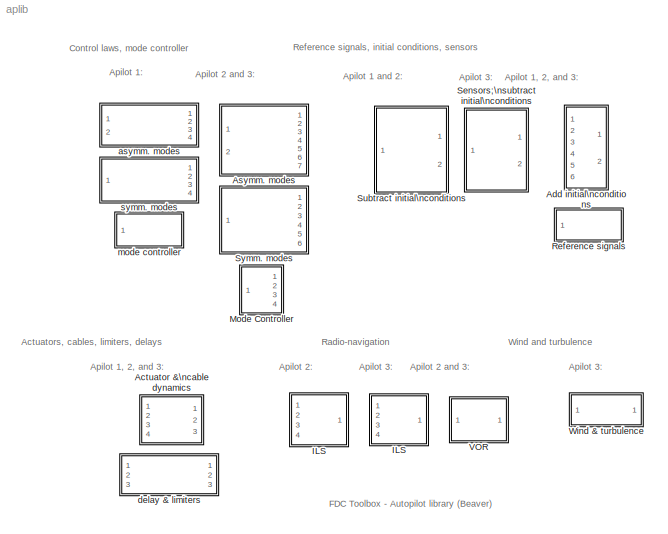
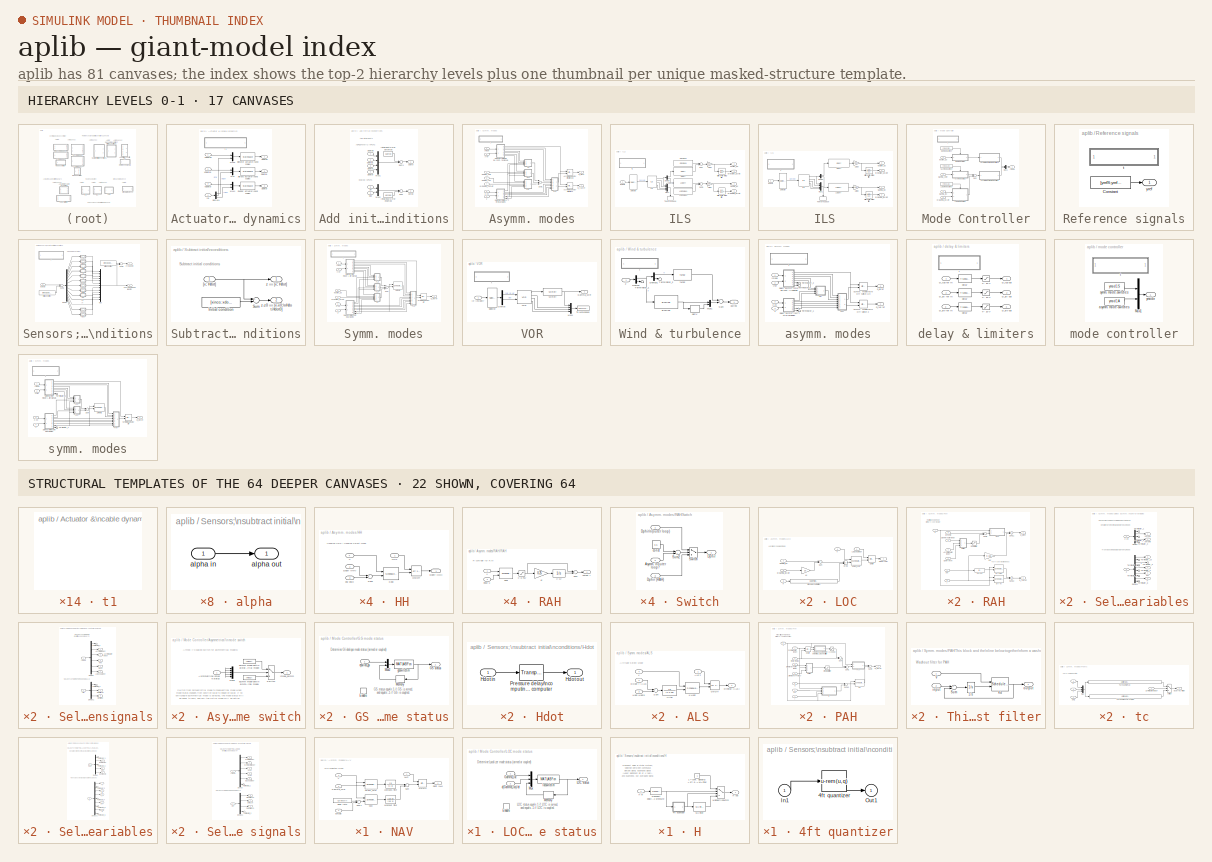
[diagram: thumbnail index - top-2 hierarchy levels (17 canvases) + 22 structural-template representatives of the remaining 64 canvases]
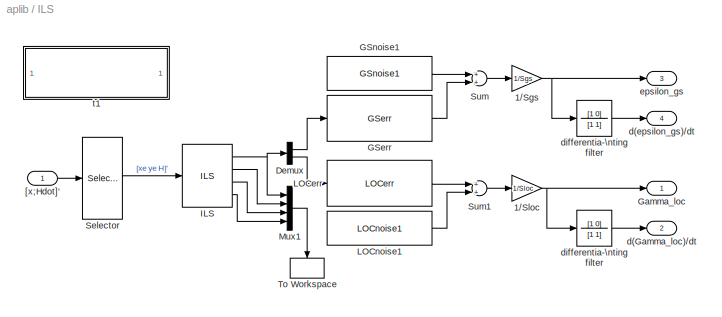
MODEL aplib
KIND library
BLOCK [SubSystem] Actuator &\ncable dynamics
  Ports = [4, 3]
  RequestExecContextInheritance = off
  SID = 1
  ShowPortLabels = none
BLOCK [StateSpace] Actuator &\ncable dynamics/Ailerons actuator\nand cables
  A = Aail
  B = Bail
  C = Cail
  D = Dail
  InitialCondition = 0
  Ports = [1, 1]
  SID = 6
BLOCK [Outport] Actuator &\ncable dynamics/Ddeltaa
  IconDisplay = Port number
  Port = 2
  SID = 15
BLOCK [Outport] Actuator &\ncable dynamics/Ddeltae
  IconDisplay = Port number
  SID = 14
BLOCK [Outport] Actuator &\ncable dynamics/Ddeltar
  IconDisplay = Port number
  Port = 3
  SID = 16
BLOCK [Demux] Actuator &\ncable dynamics/Demux1
  Outputs = 3
  Ports = [1, 3]
  SID = 7
BLOCK [StateSpace] Actuator &\ncable dynamics/Elevator actuator\nand cables
  A = Aelv
  B = Belv
  C = Celv
  D = Delv
  InitialCondition = 0
  Ports = [1, 1]
  SID = 8
BLOCK [Mux] Actuator &\ncable dynamics/Mux
  Inputs = 2
  Ports = [2, 1]
  SID = 9
BLOCK [Mux] Actuator &\ncable dynamics/Mux4
  Inputs = 2
  Ports = [2, 1]
  SID = 10
BLOCK [Mux] Actuator &\ncable dynamics/Mux5
  Inputs = 2
  Ports = [2, 1]
  SID = 11
BLOCK [StateSpace] Actuator &\ncable dynamics/Rudder actuator\nand cables
  A = Arud
  B = Brud
  C = Crud
  D = Drud
  InitialCondition = 0
  Ports = [1, 1]
  SID = 12
BLOCK [Inport] Actuator &\ncable dynamics/VDdeltaa
  IconDisplay = Port number
  Port = 2
  SID = 3
BLOCK [Inport] Actuator &\ncable dynamics/VDdeltae
  IconDisplay = Port number
  SID = 2
BLOCK [Inport] Actuator &\ncable dynamics/VDdeltar
  IconDisplay = Port number
  Port = 3
  SID = 4
BLOCK [SubSystem] Actuator &\ncable dynamics/t1
  OpenFcn = browse actuatr
  Ports = []
  RequestExecContextInheritance = off
  SID = 13
  ShowPortLabels = none
BLOCK [Inport] Actuator &\ncable dynamics/ydl
  IconDisplay = Port number
  Port = 4
  SID = 5
BLOCK [SubSystem] Add initial\nconditions
  Ports = [6, 2]
  RequestExecContextInheritance = off
  SID = 17
  ShowPortLabels = none
BLOCK [Inport] Add initial\nconditions/Ddeltaa
  IconDisplay = Port number
  Port = 2
  SID = 19
BLOCK [Inport] Add initial\nconditions/Ddeltae
  IconDisplay = Port number
  SID = 18
BLOCK [Inport] Add initial\nconditions/Ddeltaf
  IconDisplay = Port number
  Port = 4
  SID = 21
BLOCK [Inport] Add initial\nconditions/Ddeltar
  IconDisplay = Port number
  Port = 3
  SID = 20
BLOCK [Inport] Add initial\nconditions/Dn
  IconDisplay = Port number
  Port = 5
  SID = 22
BLOCK [Inport] Add initial\nconditions/Dpz
  IconDisplay = Port number
  Port = 6
  SID = 23
BLOCK [Constant] Add initial\nconditions/Initial inputs\nfor aeromod
  SID = 24
  Value = uaero0
BLOCK [Constant] Add initial\nconditions/Initial inputs\nfor engmod
  SID = 25
  Value = uprop0
BLOCK [Mux] Add initial\nconditions/Mux1
  Ports = [4, 1]
  SID = 26
BLOCK [Mux] Add initial\nconditions/Mux2
  Inputs = 2
  Ports = [2, 1]
  SID = 27
BLOCK [Sum] Add initial\nconditions/Sum
  Ports = [2, 1]
  SID = 28
BLOCK [Sum] Add initial\nconditions/Sum1
  Ports = [2, 1]
  SID = 29
BLOCK [Outport] Add initial\nconditions/uaero
  IconDisplay = Port number
  SID = 30
BLOCK [Outport] Add initial\nconditions/uprop
  IconDisplay = Port number
  Port = 2
  SID = 31
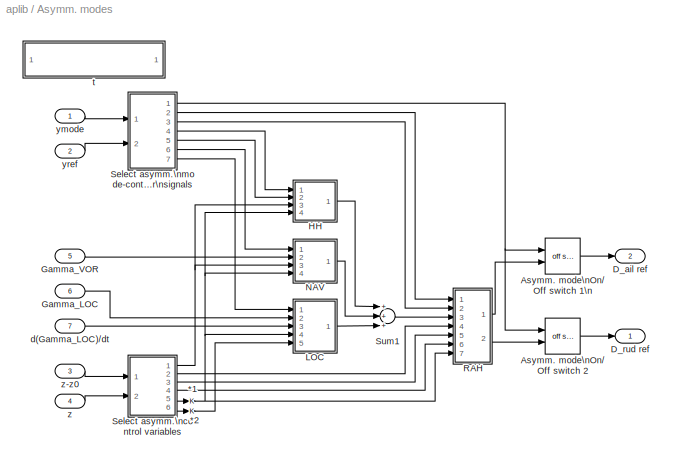
BLOCK [SubSystem] Asymm. modes
  Ports = [7, 2]
  RequestExecContextInheritance = off
  SID = 35
  ShowPortLabels = none
BLOCK [Gain] Asymm. modes/*1
  SID = 43
BLOCK [Gain] Asymm. modes/*2
  SID = 44
BLOCK [Reference] Asymm. modes/Asymm. mode\nOn//Off switch 1\n  REF=fdctools/On//off switch
  Ports = [2, 1]
  SID = 45
  SourceBlock = fdctools/On//off switch
  SourceType = On/off switch
BLOCK [Reference] Asymm. modes/Asymm. mode\nOn//Off switch 2  REF=fdctools/On//off switch
  Ports = [2, 1]
  SID = 46
  SourceBlock = fdctools/On//off switch
  SourceType = On/off switch
BLOCK [Outport] Asymm. modes/D_ail ref
  IconDisplay = Port number
  Port = 2
  SID = 166
BLOCK [Outport] Asymm. modes/D_rud ref
  IconDisplay = Port number
  SID = 165
BLOCK [Inport] Asymm. modes/Gamma_LOC
  IconDisplay = Port number
  Port = 6
  SID = 41
BLOCK [Inport] Asymm. modes/Gamma_VOR
  IconDisplay = Port number
  Port = 5
  SID = 40
BLOCK [SubSystem] Asymm. modes/HH
  Ports = [4, 1]
  RequestExecContextInheritance = off
  SID = 47
  ShowPortLabels = none
BLOCK [Outport] Asymm. modes/HH/Dphir (HH)
  IconDisplay = Port number
  SID = 55
BLOCK [Inport] Asymm. modes/HH/Dpsir (HH)
  IconDisplay = Port number
  Port = 2
  SID = 49
BLOCK [Inport] Asymm. modes/HH/HH?
  IconDisplay = Port number
  SID = 48
BLOCK [Reference] Asymm. modes/HH/Kpsi  REF=fdctools/Scheduled Gain
  K = 0.05*u[1] - 1.1
  Ports = [2, 1]
  SID = 52
  SourceBlock = fdctools/Scheduled Gain
  SourceType = Scheduled Gain
BLOCK [Reference] Asymm. modes/HH/On//Off  REF=fdctools/On//off switch
  Ports = [2, 1]
  SID = 53
  SourceBlock = fdctools/On//off switch
  SourceType = On/off switch
BLOCK [Sum] Asymm. modes/HH/Sum
  Inputs = +-
  Ports = [2, 1]
  SID = 54
BLOCK [Inport] Asymm. modes/HH/V
  IconDisplay = Port number
  Port = 4
  SID = 51
BLOCK [Inport] Asymm. modes/HH/psi-psi0
  IconDisplay = Port number
  Port = 3
  SID = 50
BLOCK [SubSystem] Asymm. modes/LOC
  Ports = [5, 1]
  RequestExecContextInheritance = off
  SID = 57
  ShowPortLabels = none
BLOCK [Outport] Asymm. modes/LOC/Dphir (LOC)
  IconDisplay = Port number
  SID = 69
BLOCK [Inport] Asymm. modes/LOC/Gamma_loc
  IconDisplay = Port number
  Port = 2
  SID = 59
BLOCK [Inport] Asymm. modes/LOC/H
  IconDisplay = Port number
  Port = 5
  SID = 62
BLOCK [Reference] Asymm. modes/LOC/KGam_LOC  REF=fdctools/Scheduled Gain
  K = (7.75*10^(-3)*u[1]^2 - 0.76*u[1] + 15.75625)/1000
  Ports = [2, 1]
  SID = 63
  SourceBlock = fdctools/Scheduled Gain
  SourceType = Scheduled Gain
BLOCK [Gain] Asymm. modes/LOC/Kv
  Gain = 10
  SID = 64
BLOCK [Inport] Asymm. modes/LOC/LOC coupled?
  IconDisplay = Port number
  SID = 58
BLOCK [Reference] Asymm. modes/LOC/On//Off  REF=fdctools/On//off switch
  Ports = [2, 1]
  SID = 65
  SourceBlock = fdctools/On//off switch
  SourceType = On/off switch
BLOCK [Fcn] Asymm. modes/LOC/Rloc approximation
  Expr = (u[1]-HRW)/sin(abs(gamgs*pi/180)) + xloc - xgs
  SID = 66
BLOCK [Sum] Asymm. modes/LOC/Sum
  Ports = [2, 1]
  SID = 67
BLOCK [Inport] Asymm. modes/LOC/V
  IconDisplay = Port number
  Port = 4
  SID = 61
BLOCK [Inport] Asymm. modes/LOC/d(Gamma_loc)//dt
  IconDisplay = Port number
  Port = 3
  SID = 60
BLOCK [Product] Asymm. modes/LOC/prod
  Ports = [2, 1]
  SID = 68
BLOCK [SubSystem] Asymm. modes/NAV
  Ports = [4, 1]
  RequestExecContextInheritance = off
  SID = 71
  ShowPortLabels = none
BLOCK [Outport] Asymm. modes/NAV/Dphir (NAV)
  IconDisplay = Port number
  SID = 84
BLOCK [Constant] Asymm. modes/NAV/Dpsir (NAV)
  SID = 76
  Value = CD-xinco(7)
BLOCK [Inport] Asymm. modes/NAV/Gamma_VOR
  IconDisplay = Port number
  Port = 2
  SID = 73
BLOCK [Reference] Asymm. modes/NAV/KGam_VOR  REF=fdctools/Scheduled Gain
  K = 5.375*10^(-2)*u[1]^2 - 6.825*u[1] + 153.03125
  Ports = [2, 1]
  SID = 77
  SourceBlock = fdctools/Scheduled Gain
  SourceType = Scheduled Gain
BLOCK [Reference] Asymm. modes/NAV/Kpsi  REF=fdctools/Scheduled Gain
  K = 0.05*u[1] - 1.1
  Ports = [2, 1]
  SID = 78
  SourceBlock = fdctools/Scheduled Gain
  SourceType = Scheduled Gain
BLOCK [TransferFcn] Asymm. modes/NAV/Low-pass filter
  Denominator = [1 1]
  SID = 79
BLOCK [Inport] Asymm. modes/NAV/NAV?
  IconDisplay = Port number
  SID = 72
BLOCK [Reference] Asymm. modes/NAV/On//Off  REF=fdctools/On//off switch
  Ports = [2, 1]
  SID = 80
  SourceBlock = fdctools/On//off switch
  SourceType = On/off switch
BLOCK [Sum] Asymm. modes/NAV/Sum
  Ports = [2, 1]
  SID = 81
BLOCK [Sum] Asymm. modes/NAV/Sum1
  Inputs = +-
  Ports = [2, 1]
  SID = 82
BLOCK [Inport] Asymm. modes/NAV/V
  IconDisplay = Port number
  Port = 4
  SID = 75
BLOCK [TransferFcn] Asymm. modes/NAV/Washout filter
  Denominator = [15 1]
  Numerator = [15 0]
  SID = 83
BLOCK [Inport] Asymm. modes/NAV/psi-psi0
  IconDisplay = Port number
  Port = 3
  SID = 74
BLOCK [SubSystem] Asymm. modes/RAH
  Ports = [7, 2]
  RequestExecContextInheritance = off
  SID = 86
  ShowPortLabels = none
BLOCK [Inport] Asymm. modes/RAH/Asymm. \nouter loop?
  IconDisplay = Port number
  SID = 87
BLOCK [Outport] Asymm. modes/RAH/D_ail ref
  IconDisplay = Port number
  SID = 120
BLOCK [Outport] Asymm. modes/RAH/D_rud ref
  IconDisplay = Port number
  Port = 2
  SID = 121
BLOCK [Saturate] Asymm. modes/RAH/Dphi\nlimiter
  InputPortMap = u0
  LowerLimit = -30*pi/180
  Ports = [1, 1]
  SID = 94
  UpperLimit = 30*pi/180
BLOCK [Inport] Asymm. modes/RAH/Dphir (RAH)
  IconDisplay = Port number
  Port = 2
  SID = 88
BLOCK [Inport] Asymm. modes/RAH/Dphir\n(outer loop)
  IconDisplay = Port number
  Port = 3
  SID = 89
BLOCK [Reference] Asymm. modes/RAH/Kr*(g//V)  REF=fdctools/Scheduled Gain
  K = -4*(9.80665/u[1])
  Ports = [2, 1]
  SID = 95
  SourceBlock = fdctools/Scheduled Gain
  SourceType = Scheduled Gain
BLOCK [SubSystem] Asymm. modes/RAH/RAH
  Ports = [2, 1]
  RequestExecContextInheritance = off
  SID = 96
  ShowPortLabels = none
BLOCK [Integrator] Asymm. modes/RAH/RAH/+//-1V
  LimitOutput = on
  LowerSaturationLimit = -1*pi/180
  Ports = [1, 1]
  SID = 99
  UpperSaturationLimit = 1*pi/180
BLOCK [Saturate] Asymm. modes/RAH/RAH/+//-3.75V
  InputPortMap = u0
  LowerLimit = -3.75*pi/180
  Ports = [1, 1]
  SID = 100
  UpperLimit = 3.75*pi/180
BLOCK [Gain] Asymm. modes/RAH/RAH/Ki
  Gain = 0.25
  SID = 101
BLOCK [Reference] Asymm. modes/RAH/RAH/Kphi  REF=fdctools/Scheduled Gain
  K = 9.75*10^(-4)*u[1]^2-0.108*u[1]+2.335625
  Ports = [2, 1]
  SID = 102
  SourceBlock = fdctools/Scheduled Gain
  SourceType = Scheduled Gain
BLOCK [Sum] Asymm. modes/RAH/RAH/Sum
  Ports = [2, 1]
  SID = 103
BLOCK [Inport] Asymm. modes/RAH/RAH/V
  IconDisplay = Port number
  SID = 97
BLOCK [Inport] Asymm. modes/RAH/RAH/input u
  IconDisplay = Port number
  Port = 2
  SID = 98
BLOCK [Outport] Asymm. modes/RAH/RAH/output y
  IconDisplay = Port number
  SID = 104
BLOCK [Sum] Asymm. modes/RAH/Sum11
  Ports = [2, 1]
  SID = 106
BLOCK [Sum] Asymm. modes/RAH/Sum12
  Ports = [2, 1]
  SID = 107
BLOCK [Sum] Asymm. modes/RAH/Sum5
  Inputs = -+
  Ports = [2, 1]
  SID = 108
BLOCK [SubSystem] Asymm. modes/RAH/Switch
  Ports = [3, 1]
  RequestExecContextInheritance = off
  SID = 109
  ShowPortLabels = none
BLOCK [Inport] Asymm. modes/RAH/Switch/Asymm. \nouter loop?
  IconDisplay = Port number
  Port = 2
  SID = 111
BLOCK [Outport] Asymm. modes/RAH/Switch/Dphir
  IconDisplay = Port number
  SID = 116
BLOCK [Inport] Asymm. modes/RAH/Switch/Dphir (RAH)
  IconDisplay = Port number
  Port = 3
  SID = 112
BLOCK [Inport] Asymm. modes/RAH/Switch/Dphir\n(outer loop)
  IconDisplay = Port number
  SID = 110
BLOCK [Sum] Asymm. modes/RAH/Switch/Sum2
  Inputs = -+
  Ports = [2, 1]
  SID = 113
BLOCK [Switch] Asymm. modes/RAH/Switch/Switch
  SID = 114
BLOCK [Constant] Asymm. modes/RAH/Switch/const
  SID = 115
  Value = 0.5
BLOCK [Inport] Asymm. modes/RAH/V
  IconDisplay = Port number
  Port = 7
  SID = 93
BLOCK [Gain] Asymm. modes/RAH/dar
  Gain = 0.165
  SID = 117
BLOCK [Reference] Asymm. modes/RAH/drr-Kr  REF=fdctools/Scheduled Gain
  K = (-7.5*10^(-5)*u[1]^2 + 0.0095*u[1] - 0.4606) + 4
  Ports = [2, 1]
  SID = 118
  SourceBlock = fdctools/Scheduled Gain
  SourceType = Scheduled Gain
BLOCK [Inport] Asymm. modes/RAH/phi
  IconDisplay = Port number
  Port = 5
  SID = 91
BLOCK [Inport] Asymm. modes/RAH/phi-phi0
  IconDisplay = Port number
  Port = 4
  SID = 90
BLOCK [Inport] Asymm. modes/RAH/r
  IconDisplay = Port number
  Port = 6
  SID = 92
BLOCK [Fcn] Asymm. modes/RAH/sin(phi)
  SID = 119
BLOCK [SubSystem] Asymm. modes/Select asymm.\ncontrol variables
  Ports = [2, 6]
  RequestExecContextInheritance = off
  SID = 124
  ShowPortLabels = none
BLOCK [Demux] Asymm. modes/Select asymm.\ncontrol variables/Demux
  Outputs = [6 1 1 1 4]
  Ports = [1, 5]
  SID = 127
BLOCK [Demux] Asymm. modes/Select asymm.\ncontrol variables/Demux1
  Outputs = [1 2 1 1 1 2 1 2 1 1]
  Ports = [1, 10]
  SID = 128
BLOCK [Outport] Asymm. modes/Select asymm.\ncontrol variables/H
  IconDisplay = Port number
  Port = 6
  SID = 143
BLOCK [Terminator] Asymm. modes/Select asymm.\ncontrol variables/Terminator_1
  SID = 129
BLOCK [Terminator] Asymm. modes/Select asymm.\ncontrol variables/Terminator_10
  SID = 130
BLOCK [Terminator] Asymm. modes/Select asymm.\ncontrol variables/Terminator_2
  SID = 131
BLOCK [Terminator] Asymm. modes/Select asymm.\ncontrol variables/Terminator_3
  SID = 132
BLOCK [Terminator] Asymm. modes/Select asymm.\ncontrol variables/Terminator_5
  SID = 133
BLOCK [Terminator] Asymm. modes/Select asymm.\ncontrol variables/Terminator_6
  SID = 134
BLOCK [Terminator] Asymm. modes/Select asymm.\ncontrol variables/Terminator_7
  SID = 135
BLOCK [Terminator] Asymm. modes/Select asymm.\ncontrol variables/Terminator_8
  SID = 136
BLOCK [Terminator] Asymm. modes/Select asymm.\ncontrol variables/Terminator_9
  SID = 137
BLOCK [Outport] Asymm. modes/Select asymm.\ncontrol variables/V
  IconDisplay = Port number
  Port = 5
  SID = 142
BLOCK [Outport] Asymm. modes/Select asymm.\ncontrol variables/phi
  IconDisplay = Port number
  Port = 3
  SID = 140
BLOCK [Outport] Asymm. modes/Select asymm.\ncontrol variables/phi-phi0
  IconDisplay = Port number
  Port = 2
  SID = 139
BLOCK [Outport] Asymm. modes/Select asymm.\ncontrol variables/psi-psi0
  IconDisplay = Port number
  SID = 138
BLOCK [Outport] Asymm. modes/Select asymm.\ncontrol variables/r
  IconDisplay = Port number
  Port = 4
  SID = 141
BLOCK [Inport] Asymm. modes/Select asymm.\ncontrol variables/z
  IconDisplay = Port number
  Port = 2
  SID = 126
BLOCK [Inport] Asymm. modes/Select asymm.\ncontrol variables/z-z0
  IconDisplay = Port number
  SID = 125
BLOCK [SubSystem] Asymm. modes/Select asymm.\nmode-controller\nsignals
  Ports = [2, 7]
  RequestExecContextInheritance = off
  SID = 147
  ShowPortLabels = none
BLOCK [Outport] Asymm. modes/Select asymm.\nmode-controller\nsignals/Asymm. mode?
  IconDisplay = Port number
  SID = 154
BLOCK [Outport] Asymm. modes/Select asymm.\nmode-controller\nsignals/Asymm. outer loop?
  IconDisplay = Port number
  Port = 2
  SID = 155
BLOCK [Demux] Asymm. modes/Select asymm.\nmode-controller\nsignals/Demux
  Outputs = [5 1 1 1 1 1]
  Ports = [1, 6]
  SID = 150
BLOCK [Demux] Asymm. modes/Select asymm.\nmode-controller\nsignals/Demux1
  Outputs = [3 1 1]
  Ports = [1, 3]
  SID = 151
BLOCK [Outport] Asymm. modes/Select asymm.\nmode-controller\nsignals/Dphir (RAH)
  IconDisplay = Port number
  Port = 3
  SID = 156
BLOCK [Outport] Asymm. modes/Select asymm.\nmode-controller\nsignals/Dpsir (HH)
  IconDisplay = Port number
  Port = 5
  SID = 158
BLOCK [Outport] Asymm. modes/Select asymm.\nmode-controller\nsignals/HH?
  IconDisplay = Port number
  Port = 4
  SID = 157
BLOCK [Outport] Asymm. modes/Select asymm.\nmode-controller\nsignals/LOC coupled?
  IconDisplay = Port number
  Port = 7
  SID = 160
BLOCK [Outport] Asymm. modes/Select asymm.\nmode-controller\nsignals/NAV?
  IconDisplay = Port number
  Port = 6
  SID = 159
BLOCK [Terminator] Asymm. modes/Select asymm.\nmode-controller\nsignals/Terminator_1
  SID = 152
BLOCK [Terminator] Asymm. modes/Select asymm.\nmode-controller\nsignals/Terminator_2
  SID = 153
BLOCK [Inport] Asymm. modes/Select asymm.\nmode-controller\nsignals/ymode
  IconDisplay = Port number
  SID = 148
BLOCK [Inport] Asymm. modes/Select asymm.\nmode-controller\nsignals/yref
  IconDisplay = Port number
  Port = 2
  SID = 149
BLOCK [Sum] Asymm. modes/Sum1
  Inputs = +++
  Ports = [3, 1]
  SID = 163
BLOCK [Inport] Asymm. modes/d(Gamma_LOC)//dt
  IconDisplay = Port number
  Port = 7
  SID = 42
BLOCK [SubSystem] Asymm. modes/t
  OpenFcn = browse ap_asymm
  Ports = []
  RequestExecContextInheritance = off
  SID = 164
  ShowPortLabels = none
BLOCK [Inport] Asymm. modes/ymode
  IconDisplay = Port number
  SID = 36
BLOCK [Inport] Asymm. modes/yref
  IconDisplay = Port number
  Port = 2
  SID = 37
BLOCK [Inport] Asymm. modes/z
  IconDisplay = Port number
  Port = 4
  SID = 39
BLOCK [Inport] Asymm. modes/z-z0
  IconDisplay = Port number
  Port = 3
  SID = 38
BLOCK [SubSystem] ILS
  Ports = [1, 4]
  RequestExecContextInheritance = off
  SID = 167
  ShowPortLabels = none
BLOCK [SubSystem] ILS 
  Ports = [1, 4]
  RequestExecContextInheritance = off
  SID = 168
  ShowPortLabels = none
BLOCK [Gain] ILS /1//Sgs
  Gain = 1/Sgs
  SID = 168:2
BLOCK [Gain] ILS /1//Sloc
  Gain = 1/Sloc
  SID = 168:3
BLOCK [Demux] ILS /Demux
  Outputs = 2
  Ports = [1, 2]
  SID = 168:4
BLOCK [Reference] ILS /GSerr  REF=navlib1/GSerr
  MaskParam2 = 0
  MaskParam3 = 0
  MaskParam4 = -3
  Ports = [1, 1]
  SID = 168:5
  SourceBlock = navlib1/GSerr
  SourceType = GS steady-state errors
  cat = 2
BLOCK [Outport] ILS /Gamma_loc
  IconDisplay = Port number
  SID = 168:14
BLOCK [Reference] ILS /ILS  REF=navlib1/ILS
  MaskParam1 = 0
  MaskParam3 = 3000
  MaskParam4 = 300
  MaskParam5 = -100
  MaskParam6 = -3
  Ports = [1, 4]
  RWpos = [12000,0,0]
  SID = 168:6
  SourceBlock = navlib1/ILS
  SourceType = ILS
BLOCK [Reference] ILS /LOCerr  REF=navlib1/LOCerr
  MaskParam2 = 0
  MaskParam3 = 0
  Ports = [1, 1]
  SID = 168:7
  SourceBlock = navlib1/LOCerr
  SourceType = LOC steady-state errors
  cat = 2
  xloc = 3000
BLOCK [Mux] ILS /Mux1
  Inputs = [2 2 6 2]
  Ports = [4, 1]
  SID = 168:8
BLOCK [Selector] ILS /Selector
  IndexOptions = Index vector (dialog)
  Indices = [10 11 12]
  InputPortWidth = 13
  OutputSizes = 1
  Ports = [1, 1]
  SID = 168:9
BLOCK [ToWorkspace] ILS /To Workspace
  MaxDataPoints = 5000
  Ports = [1]
  SID = 168:10
  VariableName = yils
BLOCK [Inport] ILS /[x;Hdot]'
  IconDisplay = Port number
  SID = 168:1
BLOCK [Outport] ILS /d(Gamma_loc)//dt
  IconDisplay = Port number
  Port = 2
  SID = 168:15
BLOCK [Outport] ILS /d(epsilon_gs)//dt
  IconDisplay = Port number
  Port = 4
  SID = 168:17
BLOCK [TransferFcn] ILS /differentia-\nting filter
  Denominator = [1 1]
  Numerator = [1 0]
  SID = 168:11
BLOCK [TransferFcn] ILS /differentia-\nting filter 
  Denominator = [1 1]
  Numerator = [1 0]
  SID = 168:12
BLOCK [Outport] ILS /epsilon_gs
  IconDisplay = Port number
  Port = 3
  SID = 168:16
BLOCK [SubSystem] ILS /t1
  OpenFcn = browse ilsxmpl
  Ports = []
  RequestExecContextInheritance = off
  SID = 168:13
  ShowPortLabels = none
BLOCK [Gain] ILS/1//Sgs
  Gain = 1/Sgs
  SID = 167:2
BLOCK [Gain] ILS/1//Sloc
  Gain = 1/Sloc
  SID = 167:3
BLOCK [Demux] ILS/Demux
  Outputs = 2
  Ports = [1, 2]
  SID = 167:4
BLOCK [Reference] ILS/GSerr  REF=navlib1/GSerr
  MaskParam2 = 0
  MaskParam3 = 0
  MaskParam4 = -3
  Ports = [1, 1]
  SID = 167:5
  SourceBlock = navlib1/GSerr
  SourceType = GS steady-state errors
  cat = 2
BLOCK [Reference] ILS/GSnoise1  REF=navlib1/GSnoise1
  Lgs = 85
  Ports = [0, 1]
  SID = 167:6
  SourceBlock = navlib1/GSnoise1
  SourceType = GsNoise1
  V = 30
  sigma_gs = 15
BLOCK [Outport] ILS/Gamma_loc
  IconDisplay = Port number
  SID = 167:18
BLOCK [Reference] ILS/ILS  REF=navlib1/ILS
  MaskParam1 = 0
  MaskParam3 = 3000
  MaskParam4 = 300
  MaskParam5 = -100
  MaskParam6 = -3
  Ports = [1, 4]
  RWpos = [12000,0,0]
  SID = 167:7
  SourceBlock = navlib1/ILS
  SourceType = ILS
BLOCK [Reference] ILS/LOCerr  REF=navlib1/LOCerr
  MaskParam2 = 0
  MaskParam3 = 0
  Ports = [1, 1]
  SID = 167:8
  SourceBlock = navlib1/LOCerr
  SourceType = LOC steady-state errors
  cat = 2
  xloc = 3000
BLOCK [Reference] ILS/LOCnoise1  REF=navlib1/LOCnoise1
  Lloc = 130
  Ports = [0, 1]
  SID = 167:9
  SourceBlock = navlib1/LOCnoise1
  SourceType = LocNoise1
  V = 30
  sigma_loc = 15
BLOCK [Mux] ILS/Mux1
  Inputs = [2 2 6 2]
  Ports = [4, 1]
  SID = 167:10
BLOCK [Selector] ILS/Selector
  IndexOptions = Index vector (dialog)
  Indices = [10 11 12]
  InputPortWidth = 13
  OutputSizes = 1
  Ports = [1, 1]
  SID = 167:11
BLOCK [Sum] ILS/Sum
  Ports = [2, 1]
  SID = 167:12
BLOCK [Sum] ILS/Sum1
  Ports = [2, 1]
  SID = 167:13
BLOCK [ToWorkspace] ILS/To Workspace
  MaxDataPoints = 5000
  Ports = [1]
  SID = 167:14
  VariableName = yils
BLOCK [Inport] ILS/[x;Hdot]'
  IconDisplay = Port number
  SID = 167:1
BLOCK [Outport] ILS/d(Gamma_loc)//dt
  IconDisplay = Port number
  Port = 2
  SID = 167:19
BLOCK [Outport] ILS/d(epsilon_gs)//dt
  IconDisplay = Port number
  Port = 4
  SID = 167:21
BLOCK [TransferFcn] ILS/differentia-\nting filter
  Denominator = [1 1]
  Numerator = [1 0]
  SID = 167:15
BLOCK [TransferFcn] ILS/differentia-\nting filter 
  Denominator = [1 1]
  Numerator = [1 0]
  SID = 167:16
BLOCK [Outport] ILS/epsilon_gs
  IconDisplay = Port number
  Port = 3
  SID = 167:20
BLOCK [SubSystem] ILS/t1
  OpenFcn = browse ilsxmpl
  Ports = []
  RequestExecContextInheritance = off
  SID = 167:17
  ShowPortLabels = none
BLOCK [SubSystem] Mode Controller
  Ports = [4, 1]
  RequestExecContextInheritance = off
  SID = 169
  ShowPortLabels = none
BLOCK [SubSystem] Mode Controller/Asymmetrical\nmode switch
  Ports = [1, 1]
  RequestExecContextInheritance = off
  SID = 174
BLOCK [Inport] Mode Controller/Asymmetrical\nmode switch/Asymmetrical\nmode status
  IconDisplay = Port number
  SID = 175
BLOCK [Mux] Mode Controller/Asymmetrical\nmode switch/Mux5
  Inputs = 5
  Ports = [5, 1]
  SID = 176
BLOCK [Switch] Mode Controller/Asymmetrical\nmode switch/Switch 
  SID = 177
BLOCK [Constant] Mode Controller/Asymmetrical\nmode switch/asymm mode-setting\n('armed'//initial mode)
  SID = 178
  Value = ymod1A
BLOCK [Constant] Mode Controller/Asymmetrical\nmode switch/asymm mode-setting\n('coupled'//final mode)
  SID = 179
  Value = ymod2A
BLOCK [Outport] Mode Controller/Asymmetrical\nmode switch/ymode_asymm
  IconDisplay = Port number
  SID = 180
BLOCK [SubSystem] Mode Controller/Asymmetrical\nmode switch1
  Ports = [1, 1]
  RequestExecContextInheritance = off
  SID = 183
BLOCK [Mux] Mode Controller/Asymmetrical\nmode switch1/Mux4
  Inputs = 5
  Ports = [5, 1]
  SID = 185
BLOCK [Switch] Mode Controller/Asymmetrical\nmode switch1/Switch
  SID = 186
BLOCK [Inport] Mode Controller/Asymmetrical\nmode switch1/Symmetrical\nmode-status
  IconDisplay = Port number
  SID = 184
BLOCK [Constant] Mode Controller/Asymmetrical\nmode switch1/symm mode-setting\n('armed'//initial mode)
  SID = 187
  Value = ymod1S
BLOCK [Constant] Mode Controller/Asymmetrical\nmode switch1/symm mode-setting\n('coupled'//final mode)
  SID = 188
  Value = ymod2S
BLOCK [Outport] Mode Controller/Asymmetrical\nmode switch1/ymode_symm
  IconDisplay = Port number
  SID = 189
BLOCK [Constant] Mode Controller/GS mode active?
  SID = 192
  Value = ymod2S(5)
BLOCK [SubSystem] Mode Controller/GS mode status
  Ports = [1, 1, 1]
  RequestExecContextInheritance = off
  SID = 193
BLOCK [EnablePort] Mode Controller/GS mode status/Enable
  Ports = []
  SID = 195
BLOCK [Outport] Mode Controller/GS mode status/GS status
  IconDisplay = Port number
  SID = 199
BLOCK [Memory] Mode Controller/GS mode status/Memory
  InitialCondition = 1
  SID = 196
BLOCK [Mux] Mode Controller/GS mode status/Mux2
  Inputs = 2
  Ports = [2, 1]
  SID = 197
BLOCK [Inport] Mode Controller/GS mode status/epsilon_gs
  IconDisplay = Port number
  SID = 194
BLOCK [MATLABFcn] Mode Controller/GS mode status/gsswitch.m
  MATLABFcn = gsswitch
  OutputDimensions = 1
  OutputSignalType = real
  Ports = [1, 1]
  SID = 198
BLOCK [Inport] Mode Controller/Gamma_VOR
  IconDisplay = Port number
  SID = 170
BLOCK [Inport] Mode Controller/Gamma_loc
  IconDisplay = Port number
  Port = 3
  SID = 172
BLOCK [Constant] Mode Controller/LOC mode active?
  SID = 202
  Value = ymod2A(5)
BLOCK [SubSystem] Mode Controller/LOC mode status
  Ports = [2, 1, 1]
  RequestExecContextInheritance = off
  SID = 203
BLOCK [Memory] Mode Controller/LOC mode status/ Memory
  InheritSampleTime = on
  SID = 207
BLOCK [EnablePort] Mode Controller/LOC mode status/Enable
  Ports = []
  SID = 206
BLOCK [Inport] Mode Controller/LOC mode status/Gamma_loc
  IconDisplay = Port number
  SID = 204
BLOCK [Outport] Mode Controller/LOC mode status/LOC status
  IconDisplay = Port number
  SID = 210
BLOCK [Mux] Mode Controller/LOC mode status/Mux
  Inputs = 3
  Ports = [3, 1]
  SID = 208
BLOCK [Inport] Mode Controller/LOC mode status/d(Gamma_loc)//dt
  IconDisplay = Port number
  Port = 2
  SID = 205
BLOCK [MATLABFcn] Mode Controller/LOC mode status/locswtch.m
  MATLABFcn = locswtch
  OutputDimensions = 1
  Ports = [1, 1]
  SID = 209
BLOCK [Mux] Mode Controller/Mux1
  Inputs = [5 5]
  Ports = [2, 1]
  SID = 213
BLOCK [Constant] Mode Controller/NAV mode active?
  SID = 214
  Value = ymod2A(4)
BLOCK [SubSystem] Mode Controller/NAV mode status
  Ports = [1, 1, 1]
  RequestExecContextInheritance = off
  SID = 215
BLOCK [EnablePort] Mode Controller/NAV mode status/Enable
  Ports = []
  SID = 217
BLOCK [Inport] Mode Controller/NAV mode status/Gamma_VOR
  IconDisplay = Port number
  SID = 216
BLOCK [Memory] Mode Controller/NAV mode status/Memory 
  InheritSampleTime = on
  InitialCondition = 1
  SID = 218
BLOCK [Mux] Mode Controller/NAV mode status/Mux2
  Inputs = 2
  Ports = [2, 1]
  SID = 219
BLOCK [Outport] Mode Controller/NAV mode status/NAV status
  IconDisplay = Port number
  SID = 221
BLOCK [MATLABFcn] Mode Controller/NAV mode status/navswtch.m
  MATLABFcn = navswtch
  OutputDimensions = 1
  Ports = [1, 1]
  SID = 220
BLOCK [Sum] Mode Controller/Sum
  Ports = [2, 1]
  SID = 224
BLOCK [Inport] Mode Controller/d(Gamma_loc)//dt
  IconDisplay = Port number
  Port = 2
  SID = 171
BLOCK [Inport] Mode Controller/epsilon_gs
  IconDisplay = Port number
  Port = 4
  SID = 173
BLOCK [SubSystem] Mode Controller/t
  OpenFcn = browse modectrl
  Ports = []
  RequestExecContextInheritance = off
  SID = 225
  ShowPortLabels = none
BLOCK [Outport] Mode Controller/ymode
  IconDisplay = Port number
  SID = 226
BLOCK [SubSystem] Reference signals
  Ports = [0, 1]
  RequestExecContextInheritance = off
  SID = 227
BLOCK [Constant] Reference signals/Constant
  SID = 228
  Value = [yrefS;yrefA]
BLOCK [SubSystem] Reference signals/t
  OpenFcn = browse modectrl
  Ports = []
  RequestExecContextInheritance = off
  SID = 229
  ShowPortLabels = none
BLOCK [Outport] Reference signals/yref
  IconDisplay = Port number
  SID = 230
BLOCK [SubSystem] Sensors;\nsubtract initial\nconditions
  Ports = [1, 2]
  RequestExecContextInheritance = off
  SID = 231
  ShowPortLabels = none
BLOCK [Demux] Sensors;\nsubtract initial\nconditions/Demux
  Outputs = 13
  Ports = [1, 13]
  SID = 233
BLOCK [SubSystem] Sensors;\nsubtract initial\nconditions/H
  Ports = [1, 1]
  RequestExecContextInheritance = off
  SID = 234
  ShowPortLabels = none
BLOCK [Constant] Sensors;\nsubtract initial\nconditions/H/1 = cont. signal\n2 = 4ft quantizer\n3 = MA-filter
  SID = 236
BLOCK [SubSystem] Sensors;\nsubtract initial\nconditions/H/4ft quantizer
  Ports = [1, 1]
  RequestExecContextInheritance = off
  SID = 237
BLOCK [Fcn] Sensors;\nsubtract initial\nconditions/H/4ft quantizer/4ft quantizer
  Expr = u-rem(u,q)
  SID = 239
BLOCK [Inport] Sensors;\nsubtract initial\nconditions/H/4ft quantizer/In1
  IconDisplay = Port number
  SID = 238
BLOCK [Outport] Sensors;\nsubtract initial\nconditions/H/4ft quantizer/Out1
  IconDisplay = Port number
  SID = 240
BLOCK [Inport] Sensors;\nsubtract initial\nconditions/H/H in
  IconDisplay = Port number
  SID = 235
BLOCK [Outport] Sensors;\nsubtract initial\nconditions/H/H out
  IconDisplay = Port number
  SID = 244
BLOCK [Reference] Sensors;\nsubtract initial\nconditions/H/MA-filter  REF=fdctools/MA-filter
  Ports = [1, 1]
  SID = 241
  SourceBlock = fdctools/MA-filter
  SourceType = Moving Average filter
  Ts = 0.033
  ns = 10
  uinit = 0
BLOCK [MultiPortSwitch] Sensors;\nsubtract initial\nconditions/H/Multiport\nSwitch
  Ports = [4, 1]
  SID = 242
BLOCK [TransportDelay] Sensors;\nsubtract initial\nconditions/H/Transport delay\nstatic pressure
  DelayTime = 0.4
  Ports = [1, 1]
  SID = 243
BLOCK [SubSystem] Sensors;\nsubtract initial\nconditions/Hdot
  Ports = [1, 1]
  RequestExecContextInheritance = off
  SID = 246
  ShowPortLabels = none
BLOCK [Inport] Sensors;\nsubtract initial\nconditions/Hdot/Hdot in
  IconDisplay = Port number
  SID = 247
BLOCK [Outport] Sensors;\nsubtract initial\nconditions/Hdot/Hdot out
  IconDisplay = Port number
  SID = 249
BLOCK [TransportDelay] Sensors;\nsubtract initial\nconditions/Hdot/Pressure delay//\ncomputing time\nairdata computer
  DelayTime = 0.8
  Ports = [1, 1]
  SID = 248
BLOCK [Constant] Sensors;\nsubtract initial\nconditions/Initial condition
  SID = 250
  Value = [xinco; xdot0(12)]
BLOCK [Constant] Sensors;\nsubtract initial\nconditions/Initial condition 
  SID = 251
  Value = [xinco; xdot0(12)]
BLOCK [Mux] Sensors;\nsubtract initial\nconditions/Mux
  Inputs = 13
  Ports = [13, 1]
  SID = 252
BLOCK [Sum] Sensors;\nsubtract initial\nconditions/Sum1
  Inputs = +-
  Ports = [2, 1]
  SID = 253
BLOCK [Sum] Sensors;\nsubtract initial\nconditions/Sum2
  Ports = [2, 1]
  SID = 254
BLOCK [SubSystem] Sensors;\nsubtract initial\nconditions/V
  Ports = [1, 1]
  RequestExecContextInheritance = off
  SID = 255
  ShowPortLabels = none
BLOCK [TransportDelay] Sensors;\nsubtract initial\nconditions/V/Transport Delay\npitot system
  DelayTime = 0.4
  Ports = [1, 1]
  SID = 257
BLOCK [Inport] Sensors;\nsubtract initial\nconditions/V/V in
  IconDisplay = Port number
  SID = 256
BLOCK [Outport] Sensors;\nsubtract initial\nconditions/V/V out
  IconDisplay = Port number
  SID = 258
BLOCK [Inport] Sensors;\nsubtract initial\nconditions/[x; Hdot]
  IconDisplay = Port number
  SID = 232
BLOCK [SubSystem] Sensors;\nsubtract initial\nconditions/alpha
  Ports = [1, 1]
  RequestExecContextInheritance = off
  SID = 259
  ShowPortLabels = none
BLOCK [Inport] Sensors;\nsubtract initial\nconditions/alpha/alpha in
  IconDisplay = Port number
  SID = 260
BLOCK [Outport] Sensors;\nsubtract initial\nconditions/alpha/alpha out
  IconDisplay = Port number
  SID = 261
BLOCK [SubSystem] Sensors;\nsubtract initial\nconditions/beta
  Ports = [1, 1]
  RequestExecContextInheritance = off
  SID = 262
  ShowPortLabels = none
BLOCK [Inport] Sensors;\nsubtract initial\nconditions/beta/beta in
  IconDisplay = Port number
  SID = 263
BLOCK [Outport] Sensors;\nsubtract initial\nconditions/beta/beta out
  IconDisplay = Port number
  SID = 264
BLOCK [SubSystem] Sensors;\nsubtract initial\nconditions/p
  Ports = [1, 1]
  RequestExecContextInheritance = off
  SID = 265
  ShowPortLabels = none
BLOCK [Inport] Sensors;\nsubtract initial\nconditions/p/p in
  IconDisplay = Port number
  SID = 266
BLOCK [Outport] Sensors;\nsubtract initial\nconditions/p/p out
  IconDisplay = Port number
  SID = 267
BLOCK [SubSystem] Sensors;\nsubtract initial\nconditions/phi
  Ports = [1, 1]
  RequestExecContextInheritance = off
  SID = 268
  ShowPortLabels = none
BLOCK [Inport] Sensors;\nsubtract initial\nconditions/phi/phi in
  IconDisplay = Port number
  SID = 269
BLOCK [Outport] Sensors;\nsubtract initial\nconditions/phi/phi out
  IconDisplay = Port number
  SID = 270
BLOCK [SubSystem] Sensors;\nsubtract initial\nconditions/psi
  Ports = [1, 1]
  RequestExecContextInheritance = off
  SID = 271
  ShowPortLabels = none
BLOCK [Inport] Sensors;\nsubtract initial\nconditions/psi/psi in
  IconDisplay = Port number
  SID = 272
BLOCK [Outport] Sensors;\nsubtract initial\nconditions/psi/psi out
  IconDisplay = Port number
  SID = 273
BLOCK [SubSystem] Sensors;\nsubtract initial\nconditions/q
  Ports = [1, 1]
  RequestExecContextInheritance = off
  SID = 274
  ShowPortLabels = none
BLOCK [Inport] Sensors;\nsubtract initial\nconditions/q/q in
  IconDisplay = Port number
  SID = 275
BLOCK [Outport] Sensors;\nsubtract initial\nconditions/q/q out
  IconDisplay = Port number
  SID = 276
BLOCK [SubSystem] Sensors;\nsubtract initial\nconditions/r
  Ports = [1, 1]
  RequestExecContextInheritance = off
  SID = 277
  ShowPortLabels = none
BLOCK [Inport] Sensors;\nsubtract initial\nconditions/r/r in
  IconDisplay = Port number
  SID = 278
BLOCK [Outport] Sensors;\nsubtract initial\nconditions/r/r out
  IconDisplay = Port number
  SID = 279
BLOCK [SubSystem] Sensors;\nsubtract initial\nconditions/t
  OpenFcn = browse sensors
  Ports = []
  RequestExecContextInheritance = off
  SID = 280
  ShowPortLabels = none
BLOCK [SubSystem] Sensors;\nsubtract initial\nconditions/theta
  Ports = [1, 1]
  RequestExecContextInheritance = off
  SID = 281
  ShowPortLabels = none
BLOCK [Inport] Sensors;\nsubtract initial\nconditions/theta/theta in
  IconDisplay = Port number
  SID = 282
BLOCK [Outport] Sensors;\nsubtract initial\nconditions/theta/theta out
  IconDisplay = Port number
  SID = 283
BLOCK [Outport] Sensors;\nsubtract initial\nconditions/z == [x; Hdot] 
  IconDisplay = Port number
  SID = 284
BLOCK [Outport] Sensors;\nsubtract initial\nconditions/z-z0 == [x-x0;\nHdot-Hdot0]
  IconDisplay = Port number
  Port = 2
  SID = 285
BLOCK [SubSystem] Subtract initial\nconditions
  Ports = [1, 2]
  RequestExecContextInheritance = off
  SID = 289
  ShowPortLabels = none
BLOCK [Constant] Subtract initial\nconditions/Initial condition
  SID = 291
  Value = [xinco; xdot0(12)]
BLOCK [Sum] Subtract initial\nconditions/Sum
  Inputs = +-
  Ports = [2, 1]
  SID = 292
BLOCK [Inport] Subtract initial\nconditions/[x; Hdot]
  IconDisplay = Port number
  SID = 290
BLOCK [Outport] Subtract initial\nconditions/z == [x; Hdot] 
  IconDisplay = Port number
  SID = 293
BLOCK [Outport] Subtract initial\nconditions/z-z0 == [x-x0;\nHdot-Hdot0]
  IconDisplay = Port number
  Port = 2
  SID = 294
BLOCK [SubSystem] Symm. modes
  Ports = [6, 1]
  RequestExecContextInheritance = off
  SID = 296
  ShowPortLabels = none
BLOCK [Gain] Symm. modes/*1
  SID = 303
BLOCK [Gain] Symm. modes/*2
  SID = 304
BLOCK [Reference] Symm. modes/1//Ktheta  REF=fdctools/Scheduled Gain
  K = 1/(-1.375*10^(-3)*u[1]^2 + 0.1575*u[1] - 4.8031)
  Ports = [2, 1]
  SID = 305
  SourceBlock = fdctools/Scheduled Gain
  SourceType = Scheduled Gain
BLOCK [SubSystem] Symm. modes/ALH
  Ports = [4, 1]
  RequestExecContextInheritance = off
  SID = 306
  ShowPortLabels = none
BLOCK [Inport] Symm. modes/ALH/ALH?
  IconDisplay = Port number
  SID = 307
BLOCK [Inport] Symm. modes/ALH/DHr (ALH)
  IconDisplay = Port number
  Port = 2
  SID = 308
BLOCK [Outport] Symm. modes/ALH/Dthetar (ALH)
  IconDisplay = Port number
  SID = 314
BLOCK [Inport] Symm. modes/ALH/H-H0
  IconDisplay = Port number
  Port = 3
  SID = 309
BLOCK [Reference] Symm. modes/ALH/KH  REF=fdctools/Scheduled Gain
  K = (-1.0*10^(-4)*u[1]^2 + 0.015*u[1] - 0.5975)*(pi/180)
  Ports = [2, 1]
  SID = 311
  SourceBlock = fdctools/Scheduled Gain
  SourceType = Scheduled Gain
BLOCK [Reference] Symm. modes/ALH/On//Off  REF=fdctools/On//off switch
  Ports = [2, 1]
  SID = 312
  SourceBlock = fdctools/On//off switch
  SourceType = On/off switch
BLOCK [Sum] Symm. modes/ALH/Sum
  Inputs = +-
  Ports = [2, 1]
  SID = 313
BLOCK [Inport] Symm. modes/ALH/V
  IconDisplay = Port number
  Port = 4
  SID = 310
BLOCK [SubSystem] Symm. modes/ALS
  Ports = [4, 1]
  RequestExecContextInheritance = off
  SID = 316
  ShowPortLabels = none
BLOCK [Inport] Symm. modes/ALS/ALS?
  IconDisplay = Port number
  SID = 317
BLOCK [Inport] Symm. modes/ALS/DHdot r (ALS)
  IconDisplay = Port number
  Port = 2
  SID = 318
BLOCK [Outport] Symm. modes/ALS/Dthetar (ALS)
  IconDisplay = Port number
  SID = 325
BLOCK [Inport] Symm. modes/ALS/Hdot-Hdot0
  IconDisplay = Port number
  Port = 3
  SID = 319
BLOCK [Reference] Symm. modes/ALS/KHdot  REF=fdctools/Scheduled Gain
  K = (-3.875*10^(-4)*u[1]^2 + 0.04025*u[1] - 1.1041)*(pi/180)
  Ports = [2, 1]
  SID = 321
  SourceBlock = fdctools/Scheduled Gain
  SourceType = Scheduled Gain
BLOCK [Reference] Symm. modes/ALS/On//Off  REF=fdctools/On//off switch
  Ports = [2, 1]
  SID = 322
  SourceBlock = fdctools/On//off switch
  SourceType = On/off switch
BLOCK [Sum] Symm. modes/ALS/Sum
  Inputs = +-
  Ports = [2, 1]
  SID = 323
BLOCK [Inport] Symm. modes/ALS/V
  IconDisplay = Port number
  Port = 4
  SID = 320
BLOCK [TransferFcn] Symm. modes/ALS/filter
  Denominator = [1 0.15]
  SID = 324
BLOCK [Outport] Symm. modes/D_elv ref
  IconDisplay = Port number
  SID = 439
BLOCK [SubSystem] Symm. modes/GS
  Ports = [5, 1]
  RequestExecContextInheritance = off
  SID = 327
  ShowPortLabels = none
BLOCK [Outport] Symm. modes/GS/Dthetar (GS)
  IconDisplay = Port number
  SID = 339
BLOCK [Inport] Symm. modes/GS/GS coupled?
  IconDisplay = Port number
  SID = 328
BLOCK [Inport] Symm. modes/GS/H
  IconDisplay = Port number
  Port = 5
  SID = 332
BLOCK [Reference] Symm. modes/GS/Keps_gs  REF=fdctools/Scheduled Gain
  K = (0.00575*u[1]^2 - 0.63*u[1] + 18.00625)/1000
  Ports = [2, 1]
  SID = 333
  SourceBlock = fdctools/Scheduled Gain
  SourceType = Scheduled Gain
BLOCK [Gain] Symm. modes/GS/Kr
  SID = 334
BLOCK [Reference] Symm. modes/GS/On//Off  REF=fdctools/On//off switch
  Ports = [2, 1]
  SID = 335
  SourceBlock = fdctools/On//off switch
  SourceType = On/off switch
BLOCK [Fcn] Symm. modes/GS/Rgs approximation
  Expr = (u[1]-HRW)/sin(abs(gamgs*pi/180))
  SID = 336
BLOCK [Sum] Symm. modes/GS/Sum
  Ports = [2, 1]
  SID = 337
BLOCK [Inport] Symm. modes/GS/V
  IconDisplay = Port number
  Port = 4
  SID = 331
BLOCK [Inport] Symm. modes/GS/d(epsilon_gs)//dt
  IconDisplay = Port number
  Port = 3
  SID = 330
BLOCK [Inport] Symm. modes/GS/epsilon_gs
  IconDisplay = Port number
  Port = 2
  SID = 329
BLOCK [Product] Symm. modes/GS/prod
  Ports = [2, 1]
  SID = 338
BLOCK [SubSystem] Symm. modes/PAH
  Ports = [8, 1]
  RequestExecContextInheritance = off
  SID = 341
  ShowPortLabels = none
BLOCK [Saturate] Symm. modes/PAH/+//-20 deg
  InputPortMap = u0
  LowerLimit = -20*(pi/180)
  Ports = [1, 1]
  SID = 350
  UpperLimit = 20*(pi/180)
BLOCK [Outport] Symm. modes/PAH/D_elv ref
  IconDisplay = Port number
  SID = 395
BLOCK [Saturate] Symm. modes/PAH/Dtheta\nlimiter
  InputPortMap = u0
  LowerLimit = -8*(pi/180)
  Ports = [1, 1]
  SID = 351
  UpperLimit = 18*(pi/180)
BLOCK [Inport] Symm. modes/PAH/Dthetar\n(PAH//GA)
  IconDisplay = Port number
  Port = 2
  SID = 343
BLOCK [Inport] Symm. modes/PAH/Dthetar\n(outer loop)
  IconDisplay = Port number
  Port = 3
  SID = 344
BLOCK [Reference] Symm. modes/PAH/Kq  REF=fdctools/Scheduled Gain
  K = -4.75*10^(-4)*u[1]^2 +0.0540*u[1] - 1.5931
  Ports = [2, 1]
  SID = 352
  SourceBlock = fdctools/Scheduled Gain
  SourceType = Scheduled Gain
BLOCK [Reference] Symm. modes/PAH/On//Off  REF=fdctools/On//off switch
  Ports = [2, 1]
  SID = 353
  SourceBlock = fdctools/On//off switch
  SourceType = On/off switch
BLOCK [SubSystem] Symm. modes/PAH/PAH
  Ports = [2, 1]
  RequestExecContextInheritance = off
  SID = 354
  ShowPortLabels = none
BLOCK [Integrator] Symm. modes/PAH/PAH/+//- 10 V
  LimitOutput = on
  LowerSaturationLimit = -10*pi/180
  Ports = [1, 1]
  SID = 357
  UpperSaturationLimit = 10*pi/180
BLOCK [Saturate] Symm. modes/PAH/PAH/+//- 2 V
  InputPortMap = u0
  LowerLimit = -2*pi/180
  Ports = [1, 1]
  SID = 358
  UpperLimit = 2*pi/180
BLOCK [Gain] Symm. modes/PAH/PAH/Ki
  Gain = 0.5
  SID = 359
BLOCK [Reference] Symm. modes/PAH/PAH/Ktheta  REF=fdctools/Scheduled Gain
  K = -1.375*10^(-3)*u[1]^2 + 0.1575*u[1] - 4.8031
  Ports = [2, 1]
  SID = 360
  SourceBlock = fdctools/Scheduled Gain
  SourceType = Scheduled Gain
BLOCK [Sum] Symm. modes/PAH/PAH/Sum
  Ports = [2, 1]
  SID = 361
BLOCK [Inport] Symm. modes/PAH/PAH/V
  IconDisplay = Port number
  SID = 355
BLOCK [Inport] Symm. modes/PAH/PAH/input
  IconDisplay = Port number
  Port = 2
  SID = 356
BLOCK [Outport] Symm. modes/PAH/PAH/output
  IconDisplay = Port number
  SID = 362
BLOCK [Sum] Symm. modes/PAH/Sum
  Inputs = -+
  Ports = [2, 1]
  SID = 364
BLOCK [Sum] Symm. modes/PAH/Sum1
  Inputs = -+
  Ports = [2, 1]
  SID = 365
BLOCK [Sum] Symm. modes/PAH/Sum10
  Inputs = +-
  Ports = [2, 1]
  SID = 366
BLOCK [Sum] Symm. modes/PAH/Sum9
  Inputs = +-
  Ports = [2, 1]
  SID = 367
BLOCK [SubSystem] Symm. modes/PAH/Switch
  Ports = [3, 1]
  RequestExecContextInheritance = off
  SID = 368
  ShowPortLabels = none
BLOCK [Outport] Symm. modes/PAH/Switch/Dthetar
  IconDisplay = Port number
  SID = 375
BLOCK [Inport] Symm. modes/PAH/Switch/Dthetar\n(PAH//GA)
  IconDisplay = Port number
  Port = 3
  SID = 371
BLOCK [Inport] Symm. modes/PAH/Switch/Dthetar\n(outer loop)
  IconDisplay = Port number
  SID = 369
BLOCK [Sum] Symm. modes/PAH/Switch/Sum2
  Inputs = -+
  Ports = [2, 1]
  SID = 372
BLOCK [Switch] Symm. modes/PAH/Switch/Switch
  SID = 373
BLOCK [Inport] Symm. modes/PAH/Switch/Symm. \nouter loop?
  IconDisplay = Port number
  Port = 2
  SID = 370
BLOCK [Constant] Symm. modes/PAH/Switch/const
  SID = 374
  Value = 0.5
BLOCK [Inport] Symm. modes/PAH/Symm. \nouter loop?
  IconDisplay = Port number
  SID = 342
BLOCK [SubSystem] Symm. modes/PAH/This block and the\nline below together\nform a washout filter
  Ports = [2, 1]
  RequestExecContextInheritance = off
  SID = 376
  ShowPortLabels = none
BLOCK [Integrator] Symm. modes/PAH/This block and the\nline below together\nform a washout filter/1//s
  Ports = [1, 1]
  SID = 379
BLOCK [Reference] Symm. modes/PAH/This block and the\nline below together\nform a washout filter/Kd  REF=fdctools/Scheduled Gain
  K = -2.5*10^(-3)*u[1]+0.2875
  Ports = [2, 1]
  SID = 380
  SourceBlock = fdctools/Scheduled Gain
  SourceType = Scheduled Gain
BLOCK [Sum] Symm. modes/PAH/This block and the\nline below together\nform a washout filter/Sum
  Inputs = +-
  Ports = [2, 1]
  SID = 381
BLOCK [Inport] Symm. modes/PAH/This block and the\nline below together\nform a washout filter/V
  IconDisplay = Port number
  SID = 377
BLOCK [Inport] Symm. modes/PAH/This block and the\nline below together\nform a washout filter/input
  IconDisplay = Port number
  Port = 2
  SID = 378
BLOCK [Outport] Symm. modes/PAH/This block and the\nline below together\nform a washout filter/output
  IconDisplay = Port number
  SID = 382
BLOCK [Inport] Symm. modes/PAH/V
  IconDisplay = Port number
  Port = 8
  SID = 349
BLOCK [Inport] Symm. modes/PAH/phi
  IconDisplay = Port number
  Port = 6
  SID = 347
BLOCK [Inport] Symm. modes/PAH/q
  IconDisplay = Port number
  Port = 5
  SID = 346
BLOCK [Inport] Symm. modes/PAH/r
  IconDisplay = Port number
  Port = 7
  SID = 348
BLOCK [SubSystem] Symm. modes/PAH/tc
  Ports = [4, 1]
  RequestExecContextInheritance = off
  SID = 384
  ShowPortLabels = none
BLOCK [Mux] Symm. modes/PAH/tc/Mux
  Inputs = 3
  Ports = [3, 1]
  SID = 389
BLOCK [Inport] Symm. modes/PAH/tc/Symm. outer loop?
  IconDisplay = Port number
  SID = 385
BLOCK [Fcn] Symm. modes/PAH/tc/Turncomp. ALH (ALS, GS)
  Expr = u[2]*tan(u[3]) + (0.03*u[1]+0.25)*((1/cos(u[3]+0.03491))-1)
  SID = 390
BLOCK [Fcn] Symm. modes/PAH/tc/Turncomp. PAH
  Expr = u[2]*tan(u[3]) + (5.0*10^(-4)*u[1]^2 - 0.03*u[1] + 0.9375)*((1/cos(u[3])) - 1)
  SID = 391
BLOCK [Inport] Symm. modes/PAH/tc/V
  IconDisplay = Port number
  Port = 4
  SID = 388
BLOCK [Inport] Symm. modes/PAH/tc/phi1
  IconDisplay = Port number
  Port = 2
  SID = 386
BLOCK [Outport] Symm. modes/PAH/tc/q correc-\ntion
  IconDisplay = Port number
  SID = 393
BLOCK [Inport] Symm. modes/PAH/tc/r
  IconDisplay = Port number
  Port = 3
  SID = 387
BLOCK [Switch] Symm. modes/PAH/tc/switch
  SID = 392
BLOCK [Inport] Symm. modes/PAH/theta-theta0
  IconDisplay = Port number
  Port = 4
  SID = 345
BLOCK [SubSystem] Symm. modes/Select symm. mode-\ncontroller signals
  Ports = [2, 8]
  RequestExecContextInheritance = off
  SID = 419
  ShowPortLabels = none
BLOCK [Outport] Symm. modes/Select symm. mode-\ncontroller signals/ALH?
  IconDisplay = Port number
  Port = 6
  SID = 431
BLOCK [Outport] Symm. modes/Select symm. mode-\ncontroller signals/ALS?
  IconDisplay = Port number
  Port = 4
  SID = 429
BLOCK [Outport] Symm. modes/Select symm. mode-\ncontroller signals/DHdot r (ALS)
  IconDisplay = Port number
  Port = 5
  SID = 430
BLOCK [Outport] Symm. modes/Select symm. mode-\ncontroller signals/DHr (ALH)
  IconDisplay = Port number
  Port = 7
  SID = 432
BLOCK [Demux] Symm. modes/Select symm. mode-\ncontroller signals/Demux
  Outputs = [1 1 1 1 1 5]
  Ports = [1, 6]
  SID = 422
BLOCK [Demux] Symm. modes/Select symm. mode-\ncontroller signals/Demux1
  Outputs = [1 1 1 2]
  Ports = [1, 4]
  SID = 423
BLOCK [Outport] Symm. modes/Select symm. mode-\ncontroller signals/Dthetar (PAH)
  IconDisplay = Port number
  Port = 3
  SID = 428
BLOCK [Outport] Symm. modes/Select symm. mode-\ncontroller signals/GS coupled?
  IconDisplay = Port number
  Port = 8
  SID = 433
BLOCK [Outport] Symm. modes/Select symm. mode-\ncontroller signals/Symm. mode?
  IconDisplay = Port number
  SID = 426
BLOCK [Outport] Symm. modes/Select symm. mode-\ncontroller signals/Symm. outer loop?
  IconDisplay = Port number
  Port = 2
  SID = 427
BLOCK [Terminator] Symm. modes/Select symm. mode-\ncontroller signals/Terminator_1
  SID = 424
BLOCK [Terminator] Symm. modes/Select symm. mode-\ncontroller signals/Terminator_2
  SID = 425
BLOCK [Inport] Symm. modes/Select symm. mode-\ncontroller signals/ymode
  IconDisplay = Port number
  SID = 420
BLOCK [Inport] Symm. modes/Select symm. mode-\ncontroller signals/yref
  IconDisplay = Port number
  Port = 2
  SID = 421
BLOCK [SubSystem] Symm. modes/Select symm\ncontrol variables
  Ports = [2, 8]
  RequestExecContextInheritance = off
  SID = 397
  ShowPortLabels = none
BLOCK [Demux] Symm. modes/Select symm\ncontrol variables/Demux
  Outputs = [7 1 3 1 1]
  Ports = [1, 5]
  SID = 400
BLOCK [Demux] Symm. modes/Select symm\ncontrol variables/Demux1
  Outputs = [1 3 1 1 2 1 2 1 1]
  Ports = [1, 9]
  SID = 401
BLOCK [Outport] Symm. modes/Select symm\ncontrol variables/H
  IconDisplay = Port number
  Port = 8
  SID = 415
BLOCK [Outport] Symm. modes/Select symm\ncontrol variables/H-H0
  IconDisplay = Port number
  Port = 2
  SID = 409
BLOCK [Outport] Symm. modes/Select symm\ncontrol variables/Hdot-Hdot0
  IconDisplay = Port number
  SID = 408
BLOCK [Terminator] Symm. modes/Select symm\ncontrol variables/Terminator_1
  SID = 402
BLOCK [Terminator] Symm. modes/Select symm\ncontrol variables/Terminator_2
  SID = 403
BLOCK [Terminator] Symm. modes/Select symm\ncontrol variables/Terminator_3
  SID = 404
BLOCK [Terminator] Symm. modes/Select symm\ncontrol variables/Terminator_4
  SID = 405
BLOCK [Terminator] Symm. modes/Select symm\ncontrol variables/Terminator_5
  SID = 406
BLOCK [Terminator] Symm. modes/Select symm\ncontrol variables/Terminator_6
  SID = 407
BLOCK [Outport] Symm. modes/Select symm\ncontrol variables/V
  IconDisplay = Port number
  Port = 7
  SID = 414
BLOCK [Outport] Symm. modes/Select symm\ncontrol variables/phi
  IconDisplay = Port number
  Port = 5
  SID = 412
BLOCK [Outport] Symm. modes/Select symm\ncontrol variables/q
  IconDisplay = Port number
  Port = 4
  SID = 411
BLOCK [Outport] Symm. modes/Select symm\ncontrol variables/r
  IconDisplay = Port number
  Port = 6
  SID = 413
BLOCK [Outport] Symm. modes/Select symm\ncontrol variables/theta-theta0
  IconDisplay = Port number
  Port = 3
  SID = 410
BLOCK [Inport] Symm. modes/Select symm\ncontrol variables/z
  IconDisplay = Port number
  Port = 2
  SID = 399
BLOCK [Inport] Symm. modes/Select symm\ncontrol variables/z-z0
  IconDisplay = Port number
  SID = 398
BLOCK [Sum] Symm. modes/Sum
  Inputs = +++
  Ports = [3, 1]
  SID = 436
BLOCK [Reference] Symm. modes/Symm. mode\nOn//Off  REF=fdctools/On//off switch
  Ports = [2, 1]
  SID = 437
  SourceBlock = fdctools/On//off switch
  SourceType = On/off switch
BLOCK [Inport] Symm. modes/d(epsilon_gs)//dt
  IconDisplay = Port number
  Port = 6
  SID = 302
BLOCK [Inport] Symm. modes/epsilon_gs
  IconDisplay = Port number
  Port = 5
  SID = 301
BLOCK [SubSystem] Symm. modes/t
  OpenFcn = browse ap_symm
  Ports = []
  RequestExecContextInheritance = off
  SID = 438
  ShowPortLabels = none
BLOCK [Inport] Symm. modes/ymode
  IconDisplay = Port number
  SID = 297
BLOCK [Inport] Symm. modes/yref
  IconDisplay = Port number
  Port = 2
  SID = 298
BLOCK [Inport] Symm. modes/z
  IconDisplay = Port number
  Port = 4
  SID = 300
BLOCK [Inport] Symm. modes/z-z0
  IconDisplay = Port number
  Port = 3
  SID = 299
BLOCK [SubSystem] VOR
  Ports = [1, 1]
  RequestExecContextInheritance = off
  SID = 440
  ShowPortLabels = none
BLOCK [Demux] VOR/Demux
  Outputs = [3 1]
  Ports = [1, 2]
  SID = 440:2
BLOCK [Outport] VOR/Gamma_VOR
  IconDisplay = Port number
  SID = 440:9
BLOCK [Mux] VOR/Mux1
  Inputs = [1 1 2 1]
  Ports = [4, 1]
  SID = 440:3
BLOCK [Selector] VOR/Selector
  IndexOptions = Index vector (dialog)
  Indices = [10 11 12 7]
  InputPortWidth = 13
  OutputSizes = 1
  Ports = [1, 1]
  SID = 440:4
BLOCK [ToWorkspace] VOR/To Workspace
  MaxDataPoints = 5000
  Ports = [1]
  SID = 440:5
  VariableName = yvor
BLOCK [Reference] VOR/VOR  REF=navlib2/VOR
  CD = CD
  HVOR = HVOR
  Ports = [2, 4]
  SID = 440:6
  SourceBlock = navlib2/VOR
  SourceType = VOR
  xVOR = xVOR
  yVOR = yVOR
BLOCK [Reference] VOR/VORerr  REF=navlib2/VORerr
  MaskParam1 = 0
  Ports = [1, 1]
  SID = 440:7
  SourceBlock = navlib2/VORerr
  SourceType = VOR error
BLOCK [Inport] VOR/[x' ;\nHdot]'
  IconDisplay = Port number
  SID = 440:1
BLOCK [SubSystem] VOR/t
  OpenFcn = browse vorxmpl
  Ports = []
  RequestExecContextInheritance = off
  SID = 440:8
  ShowPortLabels = none
BLOCK [SubSystem] Wind & turbulence
  Ports = [1, 1]
  RequestExecContextInheritance = off
  SID = 441
  ShowPortLabels = none
BLOCK [Reference] Wind & turbulence/BLwind  REF=wndlib1/BLwind
  Ports = [1, 1]
  SID = 443
  SourceBlock = wndlib1/BLwind
  SourceType = Windprofile in Earth's boundary layer
  Vw = 1*(u[1]^0.2545 - 0.4097)/1.3470
  psi_w = 180
  theta_w = 0
BLOCK [Demux] Wind & turbulence/Demux
  Outputs = [12 1]
  Ports = [1, 2]
  SID = 444
BLOCK [Demux] Wind & turbulence/Demux1
  Outputs = [1 11]
  Ports = [1, 2]
  SID = 445
BLOCK [Mux] Wind & turbulence/Mux1
  Inputs = [3 3]
  Ports = [2, 1]
  SID = 446
BLOCK [Sum] Wind & turbulence/Sum
  Ports = [2, 1]
  SID = 447
BLOCK [Terminator] Wind & turbulence/Terminator_1
  SID = 448
BLOCK [Terminator] Wind & turbulence/Terminator_2
  SID = 449
BLOCK [Derivative] Wind & turbulence/deriv
  SID = 450
BLOCK [SubSystem] Wind & turbulence/t
  Ports = []
  RequestExecContextInheritance = off
  SID = 451
  ShowPortLabels = none
BLOCK [Reference] Wind & turbulence/turb2  REF=wndlib2/turb2
  Ports = [1, 1]
  SID = 452
  SourceBlock = wndlib2/turb2
  SourceType = Unknown
BLOCK [Outport] Wind & turbulence/uwind
  IconDisplay = Port number
  SID = 453
BLOCK [Inport] Wind & turbulence/z
  IconDisplay = Port number
  SID = 442
BLOCK [SubSystem] asymm. modes
  Ports = [4, 2]
  RequestExecContextInheritance = off
  SID = 454
  ShowPortLabels = none
BLOCK [Gain] asymm. modes/*1
  SID = 459
BLOCK [Reference] asymm. modes/Asymm. mode\nOn//Off switch 1\n  REF=fdctools/On//off switch
  Ports = [2, 1]
  SID = 460
  SourceBlock = fdctools/On//off switch
  SourceType = On/off switch
BLOCK [Reference] asymm. modes/Asymm. mode\nOn//Off switch 2  REF=fdctools/On//off switch
  Ports = [2, 1]
  SID = 461
  SourceBlock = fdctools/On//off switch
  SourceType = On/off switch
BLOCK [Outport] asymm. modes/D_ail ref
  IconDisplay = Port number
  Port = 2
  SID = 554
BLOCK [Outport] asymm. modes/D_rud ref
  IconDisplay = Port number
  SID = 553
BLOCK [SubSystem] asymm. modes/HH
  Ports = [4, 1]
  RequestExecContextInheritance = off
  SID = 462
  ShowPortLabels = none
BLOCK [Outport] asymm. modes/HH/Dphir (HH)
  IconDisplay = Port number
  SID = 470
BLOCK [Inport] asymm. modes/HH/Dpsir (HH)
  IconDisplay = Port number
  Port = 2
  SID = 464
BLOCK [Inport] asymm. modes/HH/HH?
  IconDisplay = Port number
  SID = 463
BLOCK [Reference] asymm. modes/HH/Kpsi  REF=fdctools/Scheduled Gain
  K = 0.05*u[1] - 1.1
  Ports = [2, 1]
  SID = 467
  SourceBlock = fdctools/Scheduled Gain
  SourceType = Scheduled Gain
BLOCK [Reference] asymm. modes/HH/On//Off  REF=fdctools/On//off switch
  Ports = [2, 1]
  SID = 468
  SourceBlock = fdctools/On//off switch
  SourceType = On/off switch
BLOCK [Sum] asymm. modes/HH/Sum
  Inputs = +-
  Ports = [2, 1]
  SID = 469
BLOCK [Inport] asymm. modes/HH/V
  IconDisplay = Port number
  Port = 4
  SID = 466
BLOCK [Inport] asymm. modes/HH/psi-psi0
  IconDisplay = Port number
  Port = 3
  SID = 465
BLOCK [SubSystem] asymm. modes/RAH
  Ports = [7, 2]
  RequestExecContextInheritance = off
  SID = 472
  ShowPortLabels = none
BLOCK [Inport] asymm. modes/RAH/Asymm. \nouter loop?
  IconDisplay = Port number
  SID = 473
BLOCK [Outport] asymm. modes/RAH/D_ail ref
  IconDisplay = Port number
  SID = 506
BLOCK [Outport] asymm. modes/RAH/D_rud ref
  IconDisplay = Port number
  Port = 2
  SID = 507
BLOCK [Saturate] asymm. modes/RAH/Dphi\nlimiter
  InputPortMap = u0
  LowerLimit = -30*pi/180
  Ports = [1, 1]
  SID = 480
  UpperLimit = 30*pi/180
BLOCK [Inport] asymm. modes/RAH/Dphir (RAH)
  IconDisplay = Port number
  Port = 2
  SID = 474
BLOCK [Inport] asymm. modes/RAH/Dphir\n(outer loop)
  IconDisplay = Port number
  Port = 3
  SID = 475
BLOCK [Reference] asymm. modes/RAH/Kr*(g//V)  REF=fdctools/Scheduled Gain
  K = -4*(9.80665/u[1])
  Ports = [2, 1]
  SID = 481
  SourceBlock = fdctools/Scheduled Gain
  SourceType = Scheduled Gain
BLOCK [SubSystem] asymm. modes/RAH/RAH
  Ports = [2, 1]
  RequestExecContextInheritance = off
  SID = 482
  ShowPortLabels = none
BLOCK [Integrator] asymm. modes/RAH/RAH/+//-1V
  LimitOutput = on
  LowerSaturationLimit = -1*pi/180
  Ports = [1, 1]
  SID = 485
  UpperSaturationLimit = 1*pi/180
BLOCK [Saturate] asymm. modes/RAH/RAH/+//-3.75V
  InputPortMap = u0
  LowerLimit = -3.75*pi/180
  Ports = [1, 1]
  SID = 486
  UpperLimit = 3.75*pi/180
BLOCK [Gain] asymm. modes/RAH/RAH/Ki
  Gain = 0.25
  SID = 487
BLOCK [Reference] asymm. modes/RAH/RAH/Kphi  REF=fdctools/Scheduled Gain
  K = 9.75*10^(-4)*u[1]^2-0.108*u[1]+2.335625
  Ports = [2, 1]
  SID = 488
  SourceBlock = fdctools/Scheduled Gain
  SourceType = Scheduled Gain
BLOCK [Sum] asymm. modes/RAH/RAH/Sum
  Ports = [2, 1]
  SID = 489
BLOCK [Inport] asymm. modes/RAH/RAH/V
  IconDisplay = Port number
  SID = 483
BLOCK [Inport] asymm. modes/RAH/RAH/input u
  IconDisplay = Port number
  Port = 2
  SID = 484
BLOCK [Outport] asymm. modes/RAH/RAH/output y
  IconDisplay = Port number
  SID = 490
BLOCK [Sum] asymm. modes/RAH/Sum11
  Ports = [2, 1]
  SID = 492
BLOCK [Sum] asymm. modes/RAH/Sum12
  Ports = [2, 1]
  SID = 493
BLOCK [Sum] asymm. modes/RAH/Sum5
  Inputs = -+
  Ports = [2, 1]
  SID = 494
BLOCK [SubSystem] asymm. modes/RAH/Switch
  Ports = [3, 1]
  RequestExecContextInheritance = off
  SID = 495
  ShowPortLabels = none
BLOCK [Inport] asymm. modes/RAH/Switch/Asymm. \nouter loop?
  IconDisplay = Port number
  Port = 2
  SID = 497
BLOCK [Outport] asymm. modes/RAH/Switch/Dphir
  IconDisplay = Port number
  SID = 502
BLOCK [Inport] asymm. modes/RAH/Switch/Dphir (RAH)
  IconDisplay = Port number
  Port = 3
  SID = 498
BLOCK [Inport] asymm. modes/RAH/Switch/Dphir\n(outer loop)
  IconDisplay = Port number
  SID = 496
BLOCK [Sum] asymm. modes/RAH/Switch/Sum2
  Inputs = -+
  Ports = [2, 1]
  SID = 499
BLOCK [Switch] asymm. modes/RAH/Switch/Switch
  SID = 500
BLOCK [Constant] asymm. modes/RAH/Switch/const
  SID = 501
  Value = 0.5
BLOCK [Inport] asymm. modes/RAH/V
  IconDisplay = Port number
  Port = 7
  SID = 479
BLOCK [Gain] asymm. modes/RAH/dar
  Gain = 0.165
  SID = 503
BLOCK [Reference] asymm. modes/RAH/drr-Kr  REF=fdctools/Scheduled Gain
  K = (-7.5*10^(-5)*u[1]^2 + 0.0095*u[1] - 0.4606) + 4
  Ports = [2, 1]
  SID = 504
  SourceBlock = fdctools/Scheduled Gain
  SourceType = Scheduled Gain
BLOCK [Inport] asymm. modes/RAH/phi
  IconDisplay = Port number
  Port = 5
  SID = 477
BLOCK [Inport] asymm. modes/RAH/phi-phi0
  IconDisplay = Port number
  Port = 4
  SID = 476
BLOCK [Inport] asymm. modes/RAH/r
  IconDisplay = Port number
  Port = 6
  SID = 478
BLOCK [Fcn] asymm. modes/RAH/sin(phi)
  SID = 505
BLOCK [SubSystem] asymm. modes/Select asymm.\ncontrol variables
  Ports = [2, 6]
  RequestExecContextInheritance = off
  SID = 510
  ShowPortLabels = none
BLOCK [Demux] asymm. modes/Select asymm.\ncontrol variables/Demux
  Outputs = [6 1 1 1 4]
  Ports = [1, 5]
  SID = 513
BLOCK [Demux] asymm. modes/Select asymm.\ncontrol variables/Demux1
  Outputs = [1 2 1 1 1 2 1 2 1 1]
  Ports = [1, 10]
  SID = 514
BLOCK [Outport] asymm. modes/Select asymm.\ncontrol variables/H
  IconDisplay = Port number
  Port = 6
  SID = 529
BLOCK [Terminator] asymm. modes/Select asymm.\ncontrol variables/Terminator_1
  SID = 515
BLOCK [Terminator] asymm. modes/Select asymm.\ncontrol variables/Terminator_10
  SID = 516
BLOCK [Terminator] asymm. modes/Select asymm.\ncontrol variables/Terminator_2
  SID = 517
BLOCK [Terminator] asymm. modes/Select asymm.\ncontrol variables/Terminator_3
  SID = 518
BLOCK [Terminator] asymm. modes/Select asymm.\ncontrol variables/Terminator_5
  SID = 519
BLOCK [Terminator] asymm. modes/Select asymm.\ncontrol variables/Terminator_6
  SID = 520
BLOCK [Terminator] asymm. modes/Select asymm.\ncontrol variables/Terminator_7
  SID = 521
BLOCK [Terminator] asymm. modes/Select asymm.\ncontrol variables/Terminator_8
  SID = 522
BLOCK [Terminator] asymm. modes/Select asymm.\ncontrol variables/Terminator_9
  SID = 523
BLOCK [Outport] asymm. modes/Select asymm.\ncontrol variables/V
  IconDisplay = Port number
  Port = 5
  SID = 528
BLOCK [Outport] asymm. modes/Select asymm.\ncontrol variables/phi
  IconDisplay = Port number
  Port = 3
  SID = 526
BLOCK [Outport] asymm. modes/Select asymm.\ncontrol variables/phi-phi0
  IconDisplay = Port number
  Port = 2
  SID = 525
BLOCK [Outport] asymm. modes/Select asymm.\ncontrol variables/psi-psi0
  IconDisplay = Port number
  SID = 524
BLOCK [Outport] asymm. modes/Select asymm.\ncontrol variables/r
  IconDisplay = Port number
  Port = 4
  SID = 527
BLOCK [Inport] asymm. modes/Select asymm.\ncontrol variables/z
  IconDisplay = Port number
  Port = 2
  SID = 512
BLOCK [Inport] asymm. modes/Select asymm.\ncontrol variables/z-z0
  IconDisplay = Port number
  SID = 511
BLOCK [SubSystem] asymm. modes/Select asymm.\nmode-controller\nsignals
  Ports = [2, 7]
  RequestExecContextInheritance = off
  SID = 533
  ShowPortLabels = none
BLOCK [Outport] asymm. modes/Select asymm.\nmode-controller\nsignals/Asymm. mode?
  IconDisplay = Port number
  SID = 540
BLOCK [Outport] asymm. modes/Select asymm.\nmode-controller\nsignals/Asymm. outer loop?
  IconDisplay = Port number
  Port = 2
  SID = 541
BLOCK [Demux] asymm. modes/Select asymm.\nmode-controller\nsignals/Demux
  Outputs = [5 1 1 1 1 1]
  Ports = [1, 6]
  SID = 536
BLOCK [Demux] asymm. modes/Select asymm.\nmode-controller\nsignals/Demux1
  Outputs = [3 1 1]
  Ports = [1, 3]
  SID = 537
BLOCK [Outport] asymm. modes/Select asymm.\nmode-controller\nsignals/Dphir (RAH)
  IconDisplay = Port number
  Port = 3
  SID = 542
BLOCK [Outport] asymm. modes/Select asymm.\nmode-controller\nsignals/Dpsir (HH)
  IconDisplay = Port number
  Port = 5
  SID = 544
BLOCK [Outport] asymm. modes/Select asymm.\nmode-controller\nsignals/HH?
  IconDisplay = Port number
  Port = 4
  SID = 543
BLOCK [Outport] asymm. modes/Select asymm.\nmode-controller\nsignals/LOC coupled?
  IconDisplay = Port number
  Port = 7
  SID = 546
BLOCK [Outport] asymm. modes/Select asymm.\nmode-controller\nsignals/NAV?
  IconDisplay = Port number
  Port = 6
  SID = 545
BLOCK [Terminator] asymm. modes/Select asymm.\nmode-controller\nsignals/Terminator_1
  SID = 538
BLOCK [Terminator] asymm. modes/Select asymm.\nmode-controller\nsignals/Terminator_2
  SID = 539
BLOCK [Inport] asymm. modes/Select asymm.\nmode-controller\nsignals/ymode
  IconDisplay = Port number
  SID = 534
BLOCK [Inport] asymm. modes/Select asymm.\nmode-controller\nsignals/yref
  IconDisplay = Port number
  Port = 2
  SID = 535
BLOCK [Terminator] asymm. modes/Terminator_1
  SID = 549
BLOCK [Terminator] asymm. modes/Terminator_2
  SID = 550
BLOCK [Terminator] asymm. modes/Terminator_3
  SID = 551
BLOCK [SubSystem] asymm. modes/t
  OpenFcn = browse ap_asymm
  Ports = []
  RequestExecContextInheritance = off
  SID = 552
  ShowPortLabels = none
BLOCK [Inport] asymm. modes/ymode
  IconDisplay = Port number
  SID = 455
BLOCK [Inport] asymm. modes/yref
  IconDisplay = Port number
  Port = 2
  SID = 456
BLOCK [Inport] asymm. modes/z
  IconDisplay = Port number
  Port = 4
  SID = 458
BLOCK [Inport] asymm. modes/z-z0
  IconDisplay = Port number
  Port = 3
  SID = 457
BLOCK [SubSystem] delay & limiters
  Ports = [3, 3]
  RequestExecContextInheritance = off
  SID = 555
  ShowPortLabels = none
BLOCK [Saturate] delay & limiters/ +//- 10 V 
  InputPortMap = u0
  LowerLimit = -10 * (pi/180)
  Ports = [1, 1]
  SID = 559
  UpperLimit = 10 * (pi/180)
BLOCK [TransportDelay] delay & limiters/ delay
  DelayTime = 0.03
  Ports = [1, 1]
  SID = 560
BLOCK [Saturate] delay & limiters/+//- 10 V
  InputPortMap = u0
  LowerLimit = -10 * (pi/180)
  Ports = [1, 1]
  SID = 561
  UpperLimit = 10 * (pi/180)
BLOCK [Saturate] delay & limiters/+//- 10 V 
  InputPortMap = u0
  LowerLimit = -10 * (pi/180)
  Ports = [1, 1]
  SID = 562
  UpperLimit = 10 * (pi/180)
BLOCK [Outport] delay & limiters/D_ail out
  IconDisplay = Port number
  Port = 2
  SID = 567
BLOCK [Inport] delay & limiters/D_ail ref in
  IconDisplay = Port number
  Port = 2
  SID = 557
BLOCK [Outport] delay & limiters/D_elv out
  IconDisplay = Port number
  Port = 3
  SID = 568
BLOCK [Inport] delay & limiters/D_elv ref in
  IconDisplay = Port number
  Port = 3
  SID = 558
BLOCK [Outport] delay & limiters/D_rud out
  IconDisplay = Port number
  SID = 566
BLOCK [Inport] delay & limiters/D_rud ref in
  IconDisplay = Port number
  SID = 556
BLOCK [TransportDelay] delay & limiters/delay
  DelayTime = 0.03
  Ports = [1, 1]
  SID = 563
BLOCK [TransportDelay] delay & limiters/delay 
  DelayTime = 0.03
  Ports = [1, 1]
  SID = 564
BLOCK [SubSystem] delay & limiters/t
  OpenFcn = browse delaylim
  Ports = []
  RequestExecContextInheritance = off
  SID = 565
  ShowPortLabels = none
BLOCK [SubSystem] mode controller
  Ports = [0, 1]
  RequestExecContextInheritance = off
  SID = 569
  ShowPortLabels = none
BLOCK [Mux] mode controller/Mux1
  Inputs = [5 5]
  Ports = [2, 1]
  SID = 570
BLOCK [Constant] mode controller/asymm. mode-switches
  SID = 571
  Value = ymod1A
BLOCK [Constant] mode controller/symm. mode-switches
  SID = 572
  Value = ymod1S
BLOCK [SubSystem] mode controller/t
  OpenFcn = browse modectrl
  Ports = []
  RequestExecContextInheritance = off
  SID = 573
  ShowPortLabels = none
BLOCK [Outport] mode controller/ymode
  IconDisplay = Port number
  SID = 574
BLOCK [SubSystem] symm. modes
  Ports = [4, 1]
  RequestExecContextInheritance = off
  SID = 575
  ShowPortLabels = none
BLOCK [Gain] symm. modes/*1
  SID = 580
BLOCK [Reference] symm. modes/1//Ktheta  REF=fdctools/Scheduled Gain
  K = 1/(-1.375*10^(-3)*u[1]^2 + 0.1575*u[1] - 4.8031)
  Ports = [2, 1]
  SID = 581
  SourceBlock = fdctools/Scheduled Gain
  SourceType = Scheduled Gain
BLOCK [SubSystem] symm. modes/ALH
  Ports = [4, 1]
  RequestExecContextInheritance = off
  SID = 582
  ShowPortLabels = none
BLOCK [Inport] symm. modes/ALH/ALH?
  IconDisplay = Port number
  SID = 583
BLOCK [Inport] symm. modes/ALH/DHr (ALH)
  IconDisplay = Port number
  Port = 2
  SID = 584
BLOCK [Outport] symm. modes/ALH/Dthetar (ALH)
  IconDisplay = Port number
  SID = 590
BLOCK [Inport] symm. modes/ALH/H-H0
  IconDisplay = Port number
  Port = 3
  SID = 585
BLOCK [Reference] symm. modes/ALH/KH  REF=fdctools/Scheduled Gain
  K = (-1.0*10^(-4)*u[1]^2 + 0.015*u[1] - 0.5975)*(pi/180)
  Ports = [2, 1]
  SID = 587
  SourceBlock = fdctools/Scheduled Gain
  SourceType = Scheduled Gain
BLOCK [Reference] symm. modes/ALH/On//Off  REF=fdctools/On//off switch
  Ports = [2, 1]
  SID = 588
  SourceBlock = fdctools/On//off switch
  SourceType = On/off switch
BLOCK [Sum] symm. modes/ALH/Sum
  Inputs = +-
  Ports = [2, 1]
  SID = 589
BLOCK [Inport] symm. modes/ALH/V
  IconDisplay = Port number
  Port = 4
  SID = 586
BLOCK [SubSystem] symm. modes/ALS
  Ports = [4, 1]
  RequestExecContextInheritance = off
  SID = 592
  ShowPortLabels = none
BLOCK [Inport] symm. modes/ALS/ALS?
  IconDisplay = Port number
  SID = 593
BLOCK [Inport] symm. modes/ALS/DHdot r (ALS)
  IconDisplay = Port number
  Port = 2
  SID = 594
BLOCK [Outport] symm. modes/ALS/Dthetar (ALS)
  IconDisplay = Port number
  SID = 601
BLOCK [Inport] symm. modes/ALS/Hdot-Hdot0
  IconDisplay = Port number
  Port = 3
  SID = 595
BLOCK [Reference] symm. modes/ALS/KHdot  REF=fdctools/Scheduled Gain
  K = (-3.875*10^(-4)*u[1]^2 + 0.04025*u[1] - 1.1041)*(pi/180)
  Ports = [2, 1]
  SID = 597
  SourceBlock = fdctools/Scheduled Gain
  SourceType = Scheduled Gain
BLOCK [Reference] symm. modes/ALS/On//Off  REF=fdctools/On//off switch
  Ports = [2, 1]
  SID = 598
  SourceBlock = fdctools/On//off switch
  SourceType = On/off switch
BLOCK [Sum] symm. modes/ALS/Sum
  Inputs = +-
  Ports = [2, 1]
  SID = 599
BLOCK [Inport] symm. modes/ALS/V
  IconDisplay = Port number
  Port = 4
  SID = 596
BLOCK [TransferFcn] symm. modes/ALS/filter
  Denominator = [1 0.15]
  SID = 600
BLOCK [Outport] symm. modes/D_elv ref
  IconDisplay = Port number
  SID = 703
BLOCK [SubSystem] symm. modes/PAH
  Ports = [8, 1]
  RequestExecContextInheritance = off
  SID = 603
  ShowPortLabels = none
BLOCK [Saturate] symm. modes/PAH/+//-20 deg
  InputPortMap = u0
  LowerLimit = -20*(pi/180)
  Ports = [1, 1]
  SID = 612
  UpperLimit = 20*(pi/180)
BLOCK [Outport] symm. modes/PAH/D_elv ref
  IconDisplay = Port number
  SID = 657
BLOCK [Saturate] symm. modes/PAH/Dtheta\nlimiter
  InputPortMap = u0
  LowerLimit = -8*(pi/180)
  Ports = [1, 1]
  SID = 613
  UpperLimit = 18*(pi/180)
BLOCK [Inport] symm. modes/PAH/Dthetar\n(PAH//GA)
  IconDisplay = Port number
  Port = 2
  SID = 605
BLOCK [Inport] symm. modes/PAH/Dthetar\n(outer loop)
  IconDisplay = Port number
  Port = 3
  SID = 606
BLOCK [Reference] symm. modes/PAH/Kq  REF=fdctools/Scheduled Gain
  K = -4.75*10^(-4)*u[1]^2 +0.0540*u[1] - 1.5931
  Ports = [2, 1]
  SID = 614
  SourceBlock = fdctools/Scheduled Gain
  SourceType = Scheduled Gain
BLOCK [Reference] symm. modes/PAH/On//Off  REF=fdctools/On//off switch
  Ports = [2, 1]
  SID = 615
  SourceBlock = fdctools/On//off switch
  SourceType = On/off switch
BLOCK [SubSystem] symm. modes/PAH/PAH
  Ports = [2, 1]
  RequestExecContextInheritance = off
  SID = 616
  ShowPortLabels = none
BLOCK [Integrator] symm. modes/PAH/PAH/+//- 10 V
  LimitOutput = on
  LowerSaturationLimit = -10*pi/180
  Ports = [1, 1]
  SID = 619
  UpperSaturationLimit = 10*pi/180
BLOCK [Saturate] symm. modes/PAH/PAH/+//- 2 V
  InputPortMap = u0
  LowerLimit = -2*pi/180
  Ports = [1, 1]
  SID = 620
  UpperLimit = 2*pi/180
BLOCK [Gain] symm. modes/PAH/PAH/Ki
  Gain = 0.5
  SID = 621
BLOCK [Reference] symm. modes/PAH/PAH/Ktheta  REF=fdctools/Scheduled Gain
  K = -1.375*10^(-3)*u[1]^2 + 0.1575*u[1] - 4.8031
  Ports = [2, 1]
  SID = 622
  SourceBlock = fdctools/Scheduled Gain
  SourceType = Scheduled Gain
BLOCK [Sum] symm. modes/PAH/PAH/Sum
  Ports = [2, 1]
  SID = 623
BLOCK [Inport] symm. modes/PAH/PAH/V
  IconDisplay = Port number
  SID = 617
BLOCK [Inport] symm. modes/PAH/PAH/input
  IconDisplay = Port number
  Port = 2
  SID = 618
BLOCK [Outport] symm. modes/PAH/PAH/output
  IconDisplay = Port number
  SID = 624
BLOCK [Sum] symm. modes/PAH/Sum
  Inputs = -+
  Ports = [2, 1]
  SID = 626
BLOCK [Sum] symm. modes/PAH/Sum1
  Inputs = -+
  Ports = [2, 1]
  SID = 627
BLOCK [Sum] symm. modes/PAH/Sum10
  Inputs = +-
  Ports = [2, 1]
  SID = 628
BLOCK [Sum] symm. modes/PAH/Sum9
  Inputs = +-
  Ports = [2, 1]
  SID = 629
BLOCK [SubSystem] symm. modes/PAH/Switch
  Ports = [3, 1]
  RequestExecContextInheritance = off
  SID = 630
  ShowPortLabels = none
BLOCK [Outport] symm. modes/PAH/Switch/Dthetar
  IconDisplay = Port number
  SID = 637
BLOCK [Inport] symm. modes/PAH/Switch/Dthetar\n(PAH//GA)
  IconDisplay = Port number
  Port = 3
  SID = 633
BLOCK [Inport] symm. modes/PAH/Switch/Dthetar\n(outer loop)
  IconDisplay = Port number
  SID = 631
BLOCK [Sum] symm. modes/PAH/Switch/Sum2
  Inputs = -+
  Ports = [2, 1]
  SID = 634
BLOCK [Switch] symm. modes/PAH/Switch/Switch
  SID = 635
BLOCK [Inport] symm. modes/PAH/Switch/Symm. \nouter loop?
  IconDisplay = Port number
  Port = 2
  SID = 632
BLOCK [Constant] symm. modes/PAH/Switch/const
  SID = 636
  Value = 0.5
BLOCK [Inport] symm. modes/PAH/Symm. \nouter loop?
  IconDisplay = Port number
  SID = 604
BLOCK [SubSystem] symm. modes/PAH/This block and the\nline below together\nform a washout filter
  Ports = [2, 1]
  RequestExecContextInheritance = off
  SID = 638
  ShowPortLabels = none
BLOCK [Integrator] symm. modes/PAH/This block and the\nline below together\nform a washout filter/1//s
  Ports = [1, 1]
  SID = 641
BLOCK [Reference] symm. modes/PAH/This block and the\nline below together\nform a washout filter/Kd  REF=fdctools/Scheduled Gain
  K = -2.5*10^(-3)*u[1]+0.2875
  Ports = [2, 1]
  SID = 642
  SourceBlock = fdctools/Scheduled Gain
  SourceType = Scheduled Gain
BLOCK [Sum] symm. modes/PAH/This block and the\nline below together\nform a washout filter/Sum
  Inputs = +-
  Ports = [2, 1]
  SID = 643
BLOCK [Inport] symm. modes/PAH/This block and the\nline below together\nform a washout filter/V
  IconDisplay = Port number
  SID = 639
BLOCK [Inport] symm. modes/PAH/This block and the\nline below together\nform a washout filter/input
  IconDisplay = Port number
  Port = 2
  SID = 640
BLOCK [Outport] symm. modes/PAH/This block and the\nline below together\nform a washout filter/output
  IconDisplay = Port number
  SID = 644
BLOCK [Inport] symm. modes/PAH/V
  IconDisplay = Port number
  Port = 8
  SID = 611
BLOCK [Inport] symm. modes/PAH/phi
  IconDisplay = Port number
  Port = 6
  SID = 609
BLOCK [Inport] symm. modes/PAH/q
  IconDisplay = Port number
  Port = 5
  SID = 608
BLOCK [Inport] symm. modes/PAH/r
  IconDisplay = Port number
  Port = 7
  SID = 610
BLOCK [SubSystem] symm. modes/PAH/tc
  Ports = [4, 1]
  RequestExecContextInheritance = off
  SID = 646
  ShowPortLabels = none
BLOCK [Mux] symm. modes/PAH/tc/Mux
  Inputs = 3
  Ports = [3, 1]
  SID = 651
BLOCK [Inport] symm. modes/PAH/tc/Symm. outer loop?
  IconDisplay = Port number
  SID = 647
BLOCK [Fcn] symm. modes/PAH/tc/Turncomp. ALH (ALS, GS)
  Expr = u[2]*tan(u[3]) + (0.03*u[1]+0.25)*((1/cos(u[3]+0.03491))-1)
  SID = 652
BLOCK [Fcn] symm. modes/PAH/tc/Turncomp. PAH
  Expr = u[2]*tan(u[3]) + (5.0*10^(-4)*u[1]^2 - 0.03*u[1] + 0.9375)*((1/cos(u[3])) - 1)
  SID = 653
BLOCK [Inport] symm. modes/PAH/tc/V
  IconDisplay = Port number
  Port = 4
  SID = 650
BLOCK [Inport] symm. modes/PAH/tc/phi1
  IconDisplay = Port number
  Port = 2
  SID = 648
BLOCK [Outport] symm. modes/PAH/tc/q correc-\ntion
  IconDisplay = Port number
  SID = 655
BLOCK [Inport] symm. modes/PAH/tc/r
  IconDisplay = Port number
  Port = 3
  SID = 649
BLOCK [Switch] symm. modes/PAH/tc/switch
  SID = 654
BLOCK [Inport] symm. modes/PAH/theta-theta0
  IconDisplay = Port number
  Port = 4
  SID = 607
BLOCK [SubSystem] symm. modes/Select symm. mode-\ncontroller signals
  Ports = [2, 8]
  RequestExecContextInheritance = off
  SID = 681
  ShowPortLabels = none
BLOCK [Outport] symm. modes/Select symm. mode-\ncontroller signals/ALH?
  IconDisplay = Port number
  Port = 6
  SID = 693
BLOCK [Outport] symm. modes/Select symm. mode-\ncontroller signals/ALS?
  IconDisplay = Port number
  Port = 4
  SID = 691
BLOCK [Outport] symm. modes/Select symm. mode-\ncontroller signals/DHdot r (ALS)
  IconDisplay = Port number
  Port = 5
  SID = 692
BLOCK [Outport] symm. modes/Select symm. mode-\ncontroller signals/DHr (ALH)
  IconDisplay = Port number
  Port = 7
  SID = 694
BLOCK [Demux] symm. modes/Select symm. mode-\ncontroller signals/Demux
  Outputs = [1 1 1 1 1 5]
  Ports = [1, 6]
  SID = 684
BLOCK [Demux] symm. modes/Select symm. mode-\ncontroller signals/Demux1
  Outputs = [1 1 1 2]
  Ports = [1, 4]
  SID = 685
BLOCK [Outport] symm. modes/Select symm. mode-\ncontroller signals/Dthetar (PAH)
  IconDisplay = Port number
  Port = 3
  SID = 690
BLOCK [Outport] symm. modes/Select symm. mode-\ncontroller signals/GS coupled?
  IconDisplay = Port number
  Port = 8
  SID = 695
BLOCK [Outport] symm. modes/Select symm. mode-\ncontroller signals/Symm. mode?
  IconDisplay = Port number
  SID = 688
BLOCK [Outport] symm. modes/Select symm. mode-\ncontroller signals/Symm. outer loop?
  IconDisplay = Port number
  Port = 2
  SID = 689
BLOCK [Terminator] symm. modes/Select symm. mode-\ncontroller signals/Terminator_1
  SID = 686
BLOCK [Terminator] symm. modes/Select symm. mode-\ncontroller signals/Terminator_2
  SID = 687
BLOCK [Inport] symm. modes/Select symm. mode-\ncontroller signals/ymode
  IconDisplay = Port number
  SID = 682
BLOCK [Inport] symm. modes/Select symm. mode-\ncontroller signals/yref
  IconDisplay = Port number
  Port = 2
  SID = 683
BLOCK [SubSystem] symm. modes/Select symm\ncontrol variables
  Ports = [2, 8]
  RequestExecContextInheritance = off
  SID = 659
  ShowPortLabels = none
BLOCK [Demux] symm. modes/Select symm\ncontrol variables/Demux
  Outputs = [7 1 3 1 1]
  Ports = [1, 5]
  SID = 662
BLOCK [Demux] symm. modes/Select symm\ncontrol variables/Demux1
  Outputs = [1 3 1 1 2 1 2 1 1]
  Ports = [1, 9]
  SID = 663
BLOCK [Outport] symm. modes/Select symm\ncontrol variables/H
  IconDisplay = Port number
  Port = 8
  SID = 677
BLOCK [Outport] symm. modes/Select symm\ncontrol variables/H-H0
  IconDisplay = Port number
  Port = 2
  SID = 671
BLOCK [Outport] symm. modes/Select symm\ncontrol variables/Hdot-Hdot0
  IconDisplay = Port number
  SID = 670
BLOCK [Terminator] symm. modes/Select symm\ncontrol variables/Terminator_1
  SID = 664
BLOCK [Terminator] symm. modes/Select symm\ncontrol variables/Terminator_2
  SID = 665
BLOCK [Terminator] symm. modes/Select symm\ncontrol variables/Terminator_3
  SID = 666
BLOCK [Terminator] symm. modes/Select symm\ncontrol variables/Terminator_4
  SID = 667
BLOCK [Terminator] symm. modes/Select symm\ncontrol variables/Terminator_5
  SID = 668
BLOCK [Terminator] symm. modes/Select symm\ncontrol variables/Terminator_6
  SID = 669
BLOCK [Outport] symm. modes/Select symm\ncontrol variables/V
  IconDisplay = Port number
  Port = 7
  SID = 676
BLOCK [Outport] symm. modes/Select symm\ncontrol variables/phi
  IconDisplay = Port number
  Port = 5
  SID = 674
BLOCK [Outport] symm. modes/Select symm\ncontrol variables/q
  IconDisplay = Port number
  Port = 4
  SID = 673
BLOCK [Outport] symm. modes/Select symm\ncontrol variables/r
  IconDisplay = Port number
  Port = 6
  SID = 675
BLOCK [Outport] symm. modes/Select symm\ncontrol variables/theta-theta0
  IconDisplay = Port number
  Port = 3
  SID = 672
BLOCK [Inport] symm. modes/Select symm\ncontrol variables/z
  IconDisplay = Port number
  Port = 2
  SID = 661
BLOCK [Inport] symm. modes/Select symm\ncontrol variables/z-z0
  IconDisplay = Port number
  SID = 660
BLOCK [Sum] symm. modes/Sum
  Ports = [2, 1]
  SID = 698
BLOCK [Reference] symm. modes/Symm. mode\nOn//Off  REF=fdctools/On//off switch
  Ports = [2, 1]
  SID = 699
  SourceBlock = fdctools/On//off switch
  SourceType = On/off switch
BLOCK [Terminator] symm. modes/Terminator_1
  SID = 700
BLOCK [Terminator] symm. modes/Terminator_2
  SID = 701
BLOCK [SubSystem] symm. modes/t
  OpenFcn = browse ap_symm
  Ports = []
  RequestExecContextInheritance = off
  SID = 702
  ShowPortLabels = none
BLOCK [Inport] symm. modes/ymode
  IconDisplay = Port number
  SID = 576
BLOCK [Inport] symm. modes/yref
  IconDisplay = Port number
  Port = 2
  SID = 577
BLOCK [Inport] symm. modes/z
  IconDisplay = Port number
  Port = 4
  SID = 579
BLOCK [Inport] symm. modes/z-z0
  IconDisplay = Port number
  Port = 3
  SID = 578
ANNOTATION (root): Actuators, cables, limiters, delays
ANNOTATION (root): Apilot 1 and 2:
ANNOTATION (root): Apilot 1, 2, and 3:
ANNOTATION (root): Apilot 1:
ANNOTATION (root): Apilot 2 and 3:
ANNOTATION (root): Apilot 2:
ANNOTATION (root): Apilot 3:
ANNOTATION (root): Control laws, mode controller
ANNOTATION (root): FDC Toolbox - Autopilot library (Beaver)
ANNOTATION (root): Radio-navigation
ANNOTATION (root): Reference signals, initial conditions, sensors
ANNOTATION (root): Wind and turbulence
ANNOTATION Add initial\nconditions: AERODYNAMIC INPUTS:
ANNOTATION Add initial\nconditions: Add initial inputs
ANNOTATION Add initial\nconditions: ENGINE INPUTS:
ANNOTATION Asymm. modes/HH: Heading Hold / Heading Select mode
ANNOTATION Asymm. modes/LOC: Localizer coupled mode
ANNOTATION Asymm. modes/NAV: VOR navigation mode
ANNOTATION Asymm. modes/RAH: Roll Attitude Hold mode\nwith turn-coordinator
ANNOTATION Asymm. modes/RAH: Turn-coordination loops
ANNOTATION Asymm. modes/RAH/RAH: PI controller for RAH
ANNOTATION Asymm. modes/Select asymm.\ncontrol variables: Deviations from nominal outputs from AC model:
ANNOTATION Asymm. modes/Select asymm.\ncontrol variables: SELECT MEASURED ASYMM MOTION VARIABLES
ANNOTATION Asymm. modes/Select asymm.\ncontrol variables: True values of output signals from AC model:
ANNOTATION Asymm. modes/Select asymm.\nmode-controller\nsignals: SELECT ASYMM MODE\n(on/off flags denoted by '?')
ANNOTATION Asymm. modes/Select asymm.\nmode-controller\nsignals: SELECT ASYMM REFERENCE SIGNALS
ANNOTATION Mode Controller/Asymmetrical\nmode switch: Armed -> Coupled switch for asymmetrical mode(s)
ANNOTATION Mode Controller/Asymmetrical\nmode switch: Switch from 'armed'/initial mode to 'coupled'/final mode when \nmode-status changes from positive value to negative value. If no \n'switchable' asymmetrical mode is selected, the mode-status will\nbe equal to zero, and only the 'initial' mode will be active.
ANNOTATION Mode Controller/Asymmetrical\nmode switch1: Armed -> Coupled switch for symmetrical mode(s)
ANNOTATION Mode Controller/Asymmetrical\nmode switch1: Switch from 'armed'/initial mode to 'coupled'/final mode when \nmode-status changes from positive value to negative value. If no \n'switchable' asymmetrical mode is selected, the mode-status will\nbe equal to zero, and only the 'initial' mode will be active.
ANNOTATION Mode Controller/GS mode status: Determine Glideslope mode status (armed or coupled)
ANNOTATION Mode Controller/GS mode status: GS status equals 1 if GS is armed, \nand equals -1 if GS is coupled.
ANNOTATION Mode Controller/LOC mode status: Determine Localizer mode status (armed or coupled)
ANNOTATION Mode Controller/LOC mode status: LOC status equals 1 if LOC is armed, \nand equals -1 if LOC is coupled.
ANNOTATION Mode Controller/NAV mode status: Determine VOR-navigation mode status (armed or coupled)
ANNOTATION Mode Controller/NAV mode status: NAV status equals 1 if NAV is armed, \nand equals -1 if NAV is coupled.
ANNOTATION Sensors;\nsubtract initial\nconditions: SENSOR DYNAMICS:
ANNOTATION Sensors;\nsubtract initial\nconditions: xe
ANNOTATION Sensors;\nsubtract initial\nconditions: ye
ANNOTATION Sensors;\nsubtract initial\nconditions/H: Transport delay in static system,\nselection between continuous\naltitude signal, quantized signal \n(Least significant bit of 4 feet), \nand quantized, but averaged signal
ANNOTATION Subtract initial\nconditions: Subtract initial conditions
ANNOTATION Symm. modes/ALH: Altitude Hold mode
ANNOTATION Symm. modes/ALS: Altitude Select Mode
ANNOTATION Symm. modes/GS: Glideslope coupled mode
ANNOTATION Symm. modes/PAH: Pitch Attitude Hold mode\nwith turn-compensation
ANNOTATION Symm. modes/PAH/PAH: PI controller for PAH
ANNOTATION Symm. modes/PAH/This block and the\nline below together\nform a washout filter: Washout filter for PAH
ANNOTATION Symm. modes/PAH/tc: Turn-compensator
ANNOTATION Symm. modes/Select symm. mode-\ncontroller signals: SELECT SYMM REFERENCE SIGNALS
ANNOTATION Symm. modes/Select symm. mode-\ncontroller signals: SELECT SYMMETRICAL MODE\n(on/off flags denoted by '?')
ANNOTATION Symm. modes/Select symm\ncontrol variables: Deviations from nominal outputs from AC model:
ANNOTATION Symm. modes/Select symm\ncontrol variables: SELECT SYMMETRICAL CONTROL VARIABLES.
ANNOTATION Symm. modes/Select symm\ncontrol variables: True values of output signals from AC model:
ANNOTATION asymm. modes/HH: Heading Hold / Heading Select mode
ANNOTATION asymm. modes/RAH: Roll Attitude Hold mode\nwith turn-coordinator
ANNOTATION asymm. modes/RAH: Turn-coordination loops
ANNOTATION asymm. modes/RAH/RAH: PI controller for RAH
ANNOTATION asymm. modes/Select asymm.\ncontrol variables: Deviations from nominal outputs from AC model:
ANNOTATION asymm. modes/Select asymm.\ncontrol variables: SELECT MEASURED ASYMM MOTION VARIABLES
ANNOTATION asymm. modes/Select asymm.\ncontrol variables: True values of output signals from AC model:
ANNOTATION asymm. modes/Select asymm.\nmode-controller\nsignals: SELECT ASYMM MODE\n(on/off flags denoted by '?')
ANNOTATION asymm. modes/Select asymm.\nmode-controller\nsignals: SELECT ASYMM REFERENCE SIGNALS
ANNOTATION symm. modes/ALH: Altitude Hold mode
ANNOTATION symm. modes/ALS: Altitude Select Mode
ANNOTATION symm. modes/PAH: Pitch Attitude Hold mode\nwith turn-compensation
ANNOTATION symm. modes/PAH/PAH: PI controller for PAH
ANNOTATION symm. modes/PAH/This block and the\nline below together\nform a washout filter: Washout filter for PAH
ANNOTATION symm. modes/PAH/tc: Turn-compensator
ANNOTATION symm. modes/Select symm. mode-\ncontroller signals: SELECT SYMM REFERENCE SIGNALS
ANNOTATION symm. modes/Select symm. mode-\ncontroller signals: SELECT SYMMETRICAL MODE\n(on/off flags denoted by '?')
ANNOTATION symm. modes/Select symm\ncontrol variables: Deviations from nominal outputs from AC model:
ANNOTATION symm. modes/Select symm\ncontrol variables: SELECT SYMMETRICAL CONTROL VARIABLES.
ANNOTATION symm. modes/Select symm\ncontrol variables: True values of output signals from AC model:
LINE Actuator &\ncable dynamics/Ailerons actuator\nand cables:1 -> Actuator &\ncable dynamics/Ddeltaa:1
LINE Actuator &\ncable dynamics/Demux1:1 -> Actuator &\ncable dynamics/Mux:2
LINE Actuator &\ncable dynamics/Demux1:2 -> Actuator &\ncable dynamics/Mux5:2
LINE Actuator &\ncable dynamics/Demux1:3 -> Actuator &\ncable dynamics/Mux4:2
LINE Actuator &\ncable dynamics/Elevator actuator\nand cables:1 -> Actuator &\ncable dynamics/Ddeltae:1
LINE Actuator &\ncable dynamics/Mux4:1 -> Actuator &\ncable dynamics/Rudder actuator\nand cables:1
LINE Actuator &\ncable dynamics/Mux5:1 -> Actuator &\ncable dynamics/Elevator actuator\nand cables:1
LINE Actuator &\ncable dynamics/Mux:1 -> Actuator &\ncable dynamics/Ailerons actuator\nand cables:1
LINE Actuator &\ncable dynamics/Rudder actuator\nand cables:1 -> Actuator &\ncable dynamics/Ddeltar:1
LINE Actuator &\ncable dynamics/VDdeltaa:1 -> Actuator &\ncable dynamics/Mux:1
LINE Actuator &\ncable dynamics/VDdeltae:1 -> Actuator &\ncable dynamics/Mux5:1
LINE Actuator &\ncable dynamics/VDdeltar:1 -> Actuator &\ncable dynamics/Mux4:1
LINE Actuator &\ncable dynamics/ydl:1 -> Actuator &\ncable dynamics/Demux1:1
LINE Add initial\nconditions/Ddeltaa:1 -> Add initial\nconditions/Mux1:2
LINE Add initial\nconditions/Ddeltae:1 -> Add initial\nconditions/Mux1:1
LINE Add initial\nconditions/Ddeltaf:1 -> Add initial\nconditions/Mux1:4
LINE Add initial\nconditions/Ddeltar:1 -> Add initial\nconditions/Mux1:3
LINE Add initial\nconditions/Dn:1 -> Add initial\nconditions/Mux2:1
LINE Add initial\nconditions/Dpz:1 -> Add initial\nconditions/Mux2:2
LINE Add initial\nconditions/Initial inputs\nfor aeromod:1 -> Add initial\nconditions/Sum1:1
LINE Add initial\nconditions/Initial inputs\nfor engmod:1 -> Add initial\nconditions/Sum:2
LINE Add initial\nconditions/Mux1:1 -> Add initial\nconditions/Sum1:2
LINE Add initial\nconditions/Mux2:1 -> Add initial\nconditions/Sum:1
LINE Add initial\nconditions/Sum1:1 -> Add initial\nconditions/uaero:1
LINE Add initial\nconditions/Sum:1 -> Add initial\nconditions/uprop:1
NET Asymm. modes/*1:1 -> Asymm. modes/HH:4, Asymm. modes/LOC:4, Asymm. modes/NAV:4, Asymm. modes/RAH:7
LINE Asymm. modes/*2:1 -> Asymm. modes/LOC:5
LINE Asymm. modes/Asymm. mode\nOn//Off switch 1\n:1 -> Asymm. modes/D_ail ref:1
LINE Asymm. modes/Asymm. mode\nOn//Off switch 2:1 -> Asymm. modes/D_rud ref:1
LINE Asymm. modes/Gamma_LOC:1 -> Asymm. modes/LOC:2
LINE Asymm. modes/Gamma_VOR:1 -> Asymm. modes/NAV:2
LINE Asymm. modes/HH/Dpsir (HH):1 -> Asymm. modes/HH/Sum:1
LINE Asymm. modes/HH/HH?:1 -> Asymm. modes/HH/On//Off:1
LINE Asymm. modes/HH/Kpsi:1 -> Asymm. modes/HH/On//Off:2
LINE Asymm. modes/HH/On//Off:1 -> Asymm. modes/HH/Dphir (HH):1
LINE Asymm. modes/HH/Sum:1 -> Asymm. modes/HH/Kpsi:2
LINE Asymm. modes/HH/V:1 -> Asymm. modes/HH/Kpsi:1
LINE Asymm. modes/HH/psi-psi0:1 -> Asymm. modes/HH/Sum:2
LINE Asymm. modes/HH:1 -> Asymm. modes/Sum1:1
LINE Asymm. modes/LOC/Gamma_loc:1 -> Asymm. modes/LOC/Sum:1
LINE Asymm. modes/LOC/H:1 -> Asymm. modes/LOC/Rloc approximation:1
LINE Asymm. modes/LOC/KGam_LOC:1 -> Asymm. modes/LOC/On//Off:2
LINE Asymm. modes/LOC/Kv:1 -> Asymm. modes/LOC/Sum:2
LINE Asymm. modes/LOC/LOC coupled?:1 -> Asymm. modes/LOC/On//Off:1
LINE Asymm. modes/LOC/On//Off:1 -> Asymm. modes/LOC/Dphir (LOC):1
LINE Asymm. modes/LOC/Rloc approximation:1 -> Asymm. modes/LOC/prod:2
LINE Asymm. modes/LOC/Sum:1 -> Asymm. modes/LOC/prod:1
LINE Asymm. modes/LOC/V:1 -> Asymm. modes/LOC/KGam_LOC:1
LINE Asymm. modes/LOC/d(Gamma_loc)//dt:1 -> Asymm. modes/LOC/Kv:1
LINE Asymm. modes/LOC/prod:1 -> Asymm. modes/LOC/KGam_LOC:2
LINE Asymm. modes/LOC:1 -> Asymm. modes/Sum1:3
LINE Asymm. modes/NAV/Dpsir (NAV):1 -> Asymm. modes/NAV/Sum1:1
LINE Asymm. modes/NAV/Gamma_VOR:1 -> Asymm. modes/NAV/KGam_VOR:2
LINE Asymm. modes/NAV/KGam_VOR:1 -> Asymm. modes/NAV/Low-pass filter:1
LINE Asymm. modes/NAV/Kpsi:1 -> Asymm. modes/NAV/Washout filter:1
LINE Asymm. modes/NAV/Low-pass filter:1 -> Asymm. modes/NAV/Sum:1
LINE Asymm. modes/NAV/NAV?:1 -> Asymm. modes/NAV/On//Off:1
LINE Asymm. modes/NAV/On//Off:1 -> Asymm. modes/NAV/Dphir (NAV):1
LINE Asymm. modes/NAV/Sum1:1 -> Asymm. modes/NAV/Kpsi:2
LINE Asymm. modes/NAV/Sum:1 -> Asymm. modes/NAV/On//Off:2
NET Asymm. modes/NAV/V:1 -> Asymm. modes/NAV/KGam_VOR:1, Asymm. modes/NAV/Kpsi:1
LINE Asymm. modes/NAV/Washout filter:1 -> Asymm. modes/NAV/Sum:2
LINE Asymm. modes/NAV/psi-psi0:1 -> Asymm. modes/NAV/Sum1:2
LINE Asymm. modes/NAV:1 -> Asymm. modes/Sum1:2
LINE Asymm. modes/RAH/Asymm. \nouter loop?:1 -> Asymm. modes/RAH/Switch:2
LINE Asymm. modes/RAH/Dphi\nlimiter:1 -> Asymm. modes/RAH/Sum5:2
LINE Asymm. modes/RAH/Dphir (RAH):1 -> Asymm. modes/RAH/Switch:3
LINE Asymm. modes/RAH/Dphir\n(outer loop):1 -> Asymm. modes/RAH/Switch:1
LINE Asymm. modes/RAH/Kr*(g//V):1 -> Asymm. modes/RAH/Sum12:1
LINE Asymm. modes/RAH/RAH/+//-1V:1 -> Asymm. modes/RAH/RAH/Sum:2
NET Asymm. modes/RAH/RAH/+//-3.75V:1 -> Asymm. modes/RAH/RAH/Ki:1, Asymm. modes/RAH/RAH/Sum:1
LINE Asymm. modes/RAH/RAH/Ki:1 -> Asymm. modes/RAH/RAH/+//-1V:1
LINE Asymm. modes/RAH/RAH/Kphi:1 -> Asymm. modes/RAH/RAH/+//-3.75V:1
LINE Asymm. modes/RAH/RAH/Sum:1 -> Asymm. modes/RAH/RAH/output y:1
LINE Asymm. modes/RAH/RAH/V:1 -> Asymm. modes/RAH/RAH/Kphi:1
LINE Asymm. modes/RAH/RAH/input u:1 -> Asymm. modes/RAH/RAH/Kphi:2
LINE Asymm. modes/RAH/RAH:1 -> Asymm. modes/RAH/Sum11:1
LINE Asymm. modes/RAH/Sum11:1 -> Asymm. modes/RAH/D_ail ref:1
LINE Asymm. modes/RAH/Sum12:1 -> Asymm. modes/RAH/D_rud ref:1
LINE Asymm. modes/RAH/Sum5:1 -> Asymm. modes/RAH/RAH:2
LINE Asymm. modes/RAH/Switch/Asymm. \nouter loop?:1 -> Asymm. modes/RAH/Switch/Sum2:2
LINE Asymm. modes/RAH/Switch/Dphir (RAH):1 -> Asymm. modes/RAH/Switch/Switch:3
LINE Asymm. modes/RAH/Switch/Dphir\n(outer loop):1 -> Asymm. modes/RAH/Switch/Switch:1
LINE Asymm. modes/RAH/Switch/Sum2:1 -> Asymm. modes/RAH/Switch/Switch:2
LINE Asymm. modes/RAH/Switch/Switch:1 -> Asymm. modes/RAH/Switch/Dphir:1
LINE Asymm. modes/RAH/Switch/const:1 -> Asymm. modes/RAH/Switch/Sum2:1
LINE Asymm. modes/RAH/Switch:1 -> Asymm. modes/RAH/Dphi\nlimiter:1
NET Asymm. modes/RAH/V:1 -> Asymm. modes/RAH/Kr*(g//V):1, Asymm. modes/RAH/RAH:1, Asymm. modes/RAH/drr-Kr:1
LINE Asymm. modes/RAH/dar:1 -> Asymm. modes/RAH/Sum11:2
LINE Asymm. modes/RAH/drr-Kr:1 -> Asymm. modes/RAH/Sum12:2
LINE Asymm. modes/RAH/phi-phi0:1 -> Asymm. modes/RAH/Sum5:1
LINE Asymm. modes/RAH/phi:1 -> Asymm. modes/RAH/sin(phi):1
NET Asymm. modes/RAH/r:1 -> Asymm. modes/RAH/dar:1, Asymm. modes/RAH/drr-Kr:2
LINE Asymm. modes/RAH/sin(phi):1 -> Asymm. modes/RAH/Kr*(g//V):2
LINE Asymm. modes/RAH:1 -> Asymm. modes/Asymm. mode\nOn//Off switch 1\n:2
LINE Asymm. modes/RAH:2 -> Asymm. modes/Asymm. mode\nOn//Off switch 2:2
LINE Asymm. modes/Select asymm.\ncontrol variables/Demux1:1 -> Asymm. modes/Select asymm.\ncontrol variables/V:1
LINE Asymm. modes/Select asymm.\ncontrol variables/Demux1:10 -> Asymm. modes/Select asymm.\ncontrol variables/Terminator_8:1
LINE Asymm. modes/Select asymm.\ncontrol variables/Demux1:2 -> Asymm. modes/Select asymm.\ncontrol variables/Terminator_10:1
LINE Asymm. modes/Select asymm.\ncontrol variables/Demux1:3 -> Asymm. modes/Select asymm.\ncontrol variables/Terminator_9:1
LINE Asymm. modes/Select asymm.\ncontrol variables/Demux1:4 -> Asymm. modes/Select asymm.\ncontrol variables/Terminator_5:1
LINE Asymm. modes/Select asymm.\ncontrol variables/Demux1:5 -> Asymm. modes/Select asymm.\ncontrol variables/r:1
LINE Asymm. modes/Select asymm.\ncontrol variables/Demux1:6 -> Asymm. modes/Select asymm.\ncontrol variables/Terminator_6:1
LINE Asymm. modes/Select asymm.\ncontrol variables/Demux1:7 -> Asymm. modes/Select asymm.\ncontrol variables/phi:1
LINE Asymm. modes/Select asymm.\ncontrol variables/Demux1:8 -> Asymm. modes/Select asymm.\ncontrol variables/Terminator_7:1
LINE Asymm. modes/Select asymm.\ncontrol variables/Demux1:9 -> Asymm. modes/Select asymm.\ncontrol variables/H:1
LINE Asymm. modes/Select asymm.\ncontrol variables/Demux:1 -> Asymm. modes/Select asymm.\ncontrol variables/Terminator_1:1
LINE Asymm. modes/Select asymm.\ncontrol variables/Demux:2 -> Asymm. modes/Select asymm.\ncontrol variables/psi-psi0:1
LINE Asymm. modes/Select asymm.\ncontrol variables/Demux:3 -> Asymm. modes/Select asymm.\ncontrol variables/Terminator_2:1
LINE Asymm. modes/Select asymm.\ncontrol variables/Demux:4 -> Asymm. modes/Select asymm.\ncontrol variables/phi-phi0:1
LINE Asymm. modes/Select asymm.\ncontrol variables/Demux:5 -> Asymm. modes/Select asymm.\ncontrol variables/Terminator_3:1
LINE Asymm. modes/Select asymm.\ncontrol variables/z-z0:1 -> Asymm. modes/Select asymm.\ncontrol variables/Demux:1
LINE Asymm. modes/Select asymm.\ncontrol variables/z:1 -> Asymm. modes/Select asymm.\ncontrol variables/Demux1:1
NET Asymm. modes/Select asymm.\ncontrol variables:1 -> Asymm. modes/HH:3, Asymm. modes/NAV:3
LINE Asymm. modes/Select asymm.\ncontrol variables:2 -> Asymm. modes/RAH:4
LINE Asymm. modes/Select asymm.\ncontrol variables:3 -> Asymm. modes/RAH:5
LINE Asymm. modes/Select asymm.\ncontrol variables:4 -> Asymm. modes/RAH:6
LINE Asymm. modes/Select asymm.\ncontrol variables:5 -> Asymm. modes/*1:1
LINE Asymm. modes/Select asymm.\ncontrol variables:6 -> Asymm. modes/*2:1
LINE Asymm. modes/Select asymm.\nmode-controller\nsignals/Demux1:1 -> Asymm. modes/Select asymm.\nmode-controller\nsignals/Terminator_2:1
LINE Asymm. modes/Select asymm.\nmode-controller\nsignals/Demux1:2 -> Asymm. modes/Select asymm.\nmode-controller\nsignals/Dphir (RAH):1
LINE Asymm. modes/Select asymm.\nmode-controller\nsignals/Demux1:3 -> Asymm. modes/Select asymm.\nmode-controller\nsignals/Dpsir (HH):1
LINE Asymm. modes/Select asymm.\nmode-controller\nsignals/Demux:1 -> Asymm. modes/Select asymm.\nmode-controller\nsignals/Terminator_1:1
LINE Asymm. modes/Select asymm.\nmode-controller\nsignals/Demux:2 -> Asymm. modes/Select asymm.\nmode-controller\nsignals/Asymm. mode?:1
LINE Asymm. modes/Select asymm.\nmode-controller\nsignals/Demux:3 -> Asymm. modes/Select asymm.\nmode-controller\nsignals/Asymm. outer loop?:1
LINE Asymm. modes/Select asymm.\nmode-controller\nsignals/Demux:4 -> Asymm. modes/Select asymm.\nmode-controller\nsignals/HH?:1
LINE Asymm. modes/Select asymm.\nmode-controller\nsignals/Demux:5 -> Asymm. modes/Select asymm.\nmode-controller\nsignals/NAV?:1
LINE Asymm. modes/Select asymm.\nmode-controller\nsignals/Demux:6 -> Asymm. modes/Select asymm.\nmode-controller\nsignals/LOC coupled?:1
LINE Asymm. modes/Select asymm.\nmode-controller\nsignals/ymode:1 -> Asymm. modes/Select asymm.\nmode-controller\nsignals/Demux:1
LINE Asymm. modes/Select asymm.\nmode-controller\nsignals/yref:1 -> Asymm. modes/Select asymm.\nmode-controller\nsignals/Demux1:1
NET Asymm. modes/Select asymm.\nmode-controller\nsignals:1 -> Asymm. modes/Asymm. mode\nOn//Off switch 1\n:1, Asymm. modes/Asymm. mode\nOn//Off switch 2:1
LINE Asymm. modes/Select asymm.\nmode-controller\nsignals:2 -> Asymm. modes/RAH:1
LINE Asymm. modes/Select asymm.\nmode-controller\nsignals:3 -> Asymm. modes/RAH:2
LINE Asymm. modes/Select asymm.\nmode-controller\nsignals:4 -> Asymm. modes/HH:1
LINE Asymm. modes/Select asymm.\nmode-controller\nsignals:5 -> Asymm. modes/HH:2
LINE Asymm. modes/Select asymm.\nmode-controller\nsignals:6 -> Asymm. modes/NAV:1
LINE Asymm. modes/Select asymm.\nmode-controller\nsignals:7 -> Asymm. modes/LOC:1
LINE Asymm. modes/Sum1:1 -> Asymm. modes/RAH:3
LINE Asymm. modes/d(Gamma_LOC)//dt:1 -> Asymm. modes/LOC:3
LINE Asymm. modes/ymode:1 -> Asymm. modes/Select asymm.\nmode-controller\nsignals:1
LINE Asymm. modes/yref:1 -> Asymm. modes/Select asymm.\nmode-controller\nsignals:2
LINE Asymm. modes/z-z0:1 -> Asymm. modes/Select asymm.\ncontrol variables:1
LINE Asymm. modes/z:1 -> Asymm. modes/Select asymm.\ncontrol variables:2
NET ILS /1//Sgs:1 -> ILS /differentia-\nting filter:1, ILS /epsilon_gs:1
NET ILS /1//Sloc:1 -> ILS /Gamma_loc:1, ILS /differentia-\nting filter :1
LINE ILS /Demux:1 -> ILS /GSerr:1
LINE ILS /Demux:2 -> ILS /LOCerr:1
LINE ILS /GSerr:1 -> ILS /1//Sgs:1
NET ILS /ILS:1 -> ILS /Demux:1, ILS /Mux1:1
LINE ILS /ILS:2 -> ILS /Mux1:2
LINE ILS /ILS:3 -> ILS /Mux1:3
LINE ILS /ILS:4 -> ILS /Mux1:4
LINE ILS /LOCerr:1 -> ILS /1//Sloc:1
LINE ILS /Mux1:1 -> ILS /To Workspace:1
LINE ILS /Selector:1 -> ILS /ILS:1
LINE ILS /[x;Hdot]':1 -> ILS /Selector:1
LINE ILS /differentia-\nting filter :1 -> ILS /d(Gamma_loc)//dt:1
LINE ILS /differentia-\nting filter:1 -> ILS /d(epsilon_gs)//dt:1
NET ILS/1//Sgs:1 -> ILS/differentia-\nting filter:1, ILS/epsilon_gs:1
NET ILS/1//Sloc:1 -> ILS/Gamma_loc:1, ILS/differentia-\nting filter :1
LINE ILS/Demux:1 -> ILS/GSerr:1
LINE ILS/Demux:2 -> ILS/LOCerr:1
LINE ILS/GSerr:1 -> ILS/Sum:2
LINE ILS/GSnoise1:1 -> ILS/Sum:1
NET ILS/ILS:1 -> ILS/Demux:1, ILS/Mux1:1
LINE ILS/ILS:2 -> ILS/Mux1:2
LINE ILS/ILS:3 -> ILS/Mux1:3
LINE ILS/ILS:4 -> ILS/Mux1:4
LINE ILS/LOCerr:1 -> ILS/Sum1:1
LINE ILS/LOCnoise1:1 -> ILS/Sum1:2
LINE ILS/Mux1:1 -> ILS/To Workspace:1
LINE ILS/Selector:1 -> ILS/ILS:1
LINE ILS/Sum1:1 -> ILS/1//Sloc:1
LINE ILS/Sum:1 -> ILS/1//Sgs:1
LINE ILS/[x;Hdot]':1 -> ILS/Selector:1
LINE ILS/differentia-\nting filter :1 -> ILS/d(Gamma_loc)//dt:1
LINE ILS/differentia-\nting filter:1 -> ILS/d(epsilon_gs)//dt:1
NET Mode Controller/Asymmetrical\nmode switch/Asymmetrical\nmode status:1 -> Mode Controller/Asymmetrical\nmode switch/Mux5:1, Mode Controller/Asymmetrical\nmode switch/Mux5:2, Mode Controller/Asymmetrical\nmode switch/Mux5:3, Mode Controller/Asymmetrical\nmode switch/Mux5:4, Mode Controller/Asymmetrical\nmode switch/Mux5:5
LINE Mode Controller/Asymmetrical\nmode switch/Mux5:1 -> Mode Controller/Asymmetrical\nmode switch/Switch :2
LINE Mode Controller/Asymmetrical\nmode switch/Switch :1 -> Mode Controller/Asymmetrical\nmode switch/ymode_asymm:1
LINE Mode Controller/Asymmetrical\nmode switch/asymm mode-setting\n('armed'//initial mode):1 -> Mode Controller/Asymmetrical\nmode switch/Switch :1
LINE Mode Controller/Asymmetrical\nmode switch/asymm mode-setting\n('coupled'//final mode):1 -> Mode Controller/Asymmetrical\nmode switch/Switch :3
LINE Mode Controller/Asymmetrical\nmode switch1/Mux4:1 -> Mode Controller/Asymmetrical\nmode switch1/Switch:2
LINE Mode Controller/Asymmetrical\nmode switch1/Switch:1 -> Mode Controller/Asymmetrical\nmode switch1/ymode_symm:1
NET Mode Controller/Asymmetrical\nmode switch1/Symmetrical\nmode-status:1 -> Mode Controller/Asymmetrical\nmode switch1/Mux4:1, Mode Controller/Asymmetrical\nmode switch1/Mux4:2, Mode Controller/Asymmetrical\nmode switch1/Mux4:3, Mode Controller/Asymmetrical\nmode switch1/Mux4:4, Mode Controller/Asymmetrical\nmode switch1/Mux4:5
LINE Mode Controller/Asymmetrical\nmode switch1/symm mode-setting\n('armed'//initial mode):1 -> Mode Controller/Asymmetrical\nmode switch1/Switch:1
LINE Mode Controller/Asymmetrical\nmode switch1/symm mode-setting\n('coupled'//final mode):1 -> Mode Controller/Asymmetrical\nmode switch1/Switch:3
LINE Mode Controller/Asymmetrical\nmode switch1:1 -> Mode Controller/Mux1:1
LINE Mode Controller/Asymmetrical\nmode switch:1 -> Mode Controller/Mux1:2
LINE Mode Controller/GS mode active?:1 -> Mode Controller/GS mode status:enable
LINE Mode Controller/GS mode status/Memory:1 -> Mode Controller/GS mode status/Mux2:2
LINE Mode Controller/GS mode status/Mux2:1 -> Mode Controller/GS mode status/gsswitch.m:1
LINE Mode Controller/GS mode status/epsilon_gs:1 -> Mode Controller/GS mode status/Mux2:1
NET Mode Controller/GS mode status/gsswitch.m:1 -> Mode Controller/GS mode status/GS status:1, Mode Controller/GS mode status/Memory:1
LINE Mode Controller/GS mode status:1 -> Mode Controller/Asymmetrical\nmode switch1:1
LINE Mode Controller/Gamma_VOR:1 -> Mode Controller/NAV mode status:1
LINE Mode Controller/Gamma_loc:1 -> Mode Controller/LOC mode status:1
LINE Mode Controller/LOC mode active?:1 -> Mode Controller/LOC mode status:enable
LINE Mode Controller/LOC mode status/ Memory:1 -> Mode Controller/LOC mode status/Mux:3
LINE Mode Controller/LOC mode status/Gamma_loc:1 -> Mode Controller/LOC mode status/Mux:1
LINE Mode Controller/LOC mode status/Mux:1 -> Mode Controller/LOC mode status/locswtch.m:1
LINE Mode Controller/LOC mode status/d(Gamma_loc)//dt:1 -> Mode Controller/LOC mode status/Mux:2
NET Mode Controller/LOC mode status/locswtch.m:1 -> Mode Controller/LOC mode status/ Memory:1, Mode Controller/LOC mode status/LOC status:1
LINE Mode Controller/LOC mode status:1 -> Mode Controller/Sum:2
LINE Mode Controller/Mux1:1 -> Mode Controller/ymode:1
LINE Mode Controller/NAV mode active?:1 -> Mode Controller/NAV mode status:enable
LINE Mode Controller/NAV mode status/Gamma_VOR:1 -> Mode Controller/NAV mode status/Mux2:1
LINE Mode Controller/NAV mode status/Memory :1 -> Mode Controller/NAV mode status/Mux2:2
LINE Mode Controller/NAV mode status/Mux2:1 -> Mode Controller/NAV mode status/navswtch.m:1
NET Mode Controller/NAV mode status/navswtch.m:1 -> Mode Controller/NAV mode status/Memory :1, Mode Controller/NAV mode status/NAV status:1
LINE Mode Controller/NAV mode status:1 -> Mode Controller/Sum:1
LINE Mode Controller/Sum:1 -> Mode Controller/Asymmetrical\nmode switch:1
LINE Mode Controller/d(Gamma_loc)//dt:1 -> Mode Controller/LOC mode status:2
LINE Mode Controller/epsilon_gs:1 -> Mode Controller/GS mode status:1
LINE Reference signals/Constant:1 -> Reference signals/yref:1
LINE Sensors;\nsubtract initial\nconditions/Demux:1 -> Sensors;\nsubtract initial\nconditions/V:1
LINE Sensors;\nsubtract initial\nconditions/Demux:10 -> Sensors;\nsubtract initial\nconditions/Mux:10
LINE Sensors;\nsubtract initial\nconditions/Demux:11 -> Sensors;\nsubtract initial\nconditions/Mux:11
LINE Sensors;\nsubtract initial\nconditions/Demux:12 -> Sensors;\nsubtract initial\nconditions/H:1
LINE Sensors;\nsubtract initial\nconditions/Demux:13 -> Sensors;\nsubtract initial\nconditions/Hdot:1
LINE Sensors;\nsubtract initial\nconditions/Demux:2 -> Sensors;\nsubtract initial\nconditions/alpha:1
LINE Sensors;\nsubtract initial\nconditions/Demux:3 -> Sensors;\nsubtract initial\nconditions/beta:1
LINE Sensors;\nsubtract initial\nconditions/Demux:4 -> Sensors;\nsubtract initial\nconditions/p:1
LINE Sensors;\nsubtract initial\nconditions/Demux:5 -> Sensors;\nsubtract initial\nconditions/q:1
LINE Sensors;\nsubtract initial\nconditions/Demux:6 -> Sensors;\nsubtract initial\nconditions/r:1
LINE Sensors;\nsubtract initial\nconditions/Demux:7 -> Sensors;\nsubtract initial\nconditions/psi:1
LINE Sensors;\nsubtract initial\nconditions/Demux:8 -> Sensors;\nsubtract initial\nconditions/theta:1
LINE Sensors;\nsubtract initial\nconditions/Demux:9 -> Sensors;\nsubtract initial\nconditions/phi:1
LINE Sensors;\nsubtract initial\nconditions/H/1 = cont. signal\n2 = 4ft quantizer\n3 = MA-filter:1 -> Sensors;\nsubtract initial\nconditions/H/Multiport\nSwitch:1
LINE Sensors;\nsubtract initial\nconditions/H/4ft quantizer/4ft quantizer:1 -> Sensors;\nsubtract initial\nconditions/H/4ft quantizer/Out1:1
LINE Sensors;\nsubtract initial\nconditions/H/4ft quantizer/In1:1 -> Sensors;\nsubtract initial\nconditions/H/4ft quantizer/4ft quantizer:1
NET Sensors;\nsubtract initial\nconditions/H/4ft quantizer:1 -> Sensors;\nsubtract initial\nconditions/H/MA-filter:1, Sensors;\nsubtract initial\nconditions/H/Multiport\nSwitch:3
LINE Sensors;\nsubtract initial\nconditions/H/H in:1 -> Sensors;\nsubtract initial\nconditions/H/Transport delay\nstatic pressure:1
LINE Sensors;\nsubtract initial\nconditions/H/MA-filter:1 -> Sensors;\nsubtract initial\nconditions/H/Multiport\nSwitch:4
LINE Sensors;\nsubtract initial\nconditions/H/Multiport\nSwitch:1 -> Sensors;\nsubtract initial\nconditions/H/H out:1
NET Sensors;\nsubtract initial\nconditions/H/Transport delay\nstatic pressure:1 -> Sensors;\nsubtract initial\nconditions/H/4ft quantizer:1, Sensors;\nsubtract initial\nconditions/H/Multiport\nSwitch:2
LINE Sensors;\nsubtract initial\nconditions/H:1 -> Sensors;\nsubtract initial\nconditions/Mux:12
LINE Sensors;\nsubtract initial\nconditions/Hdot/Hdot in:1 -> Sensors;\nsubtract initial\nconditions/Hdot/Pressure delay//\ncomputing time\nairdata computer:1
LINE Sensors;\nsubtract initial\nconditions/Hdot/Pressure delay//\ncomputing time\nairdata computer:1 -> Sensors;\nsubtract initial\nconditions/Hdot/Hdot out:1
LINE Sensors;\nsubtract initial\nconditions/Hdot:1 -> Sensors;\nsubtract initial\nconditions/Mux:13
LINE Sensors;\nsubtract initial\nconditions/Initial condition :1 -> Sensors;\nsubtract initial\nconditions/Sum2:1
LINE Sensors;\nsubtract initial\nconditions/Initial condition:1 -> Sensors;\nsubtract initial\nconditions/Sum1:2
NET Sensors;\nsubtract initial\nconditions/Mux:1 -> Sensors;\nsubtract initial\nconditions/Sum2:2, Sensors;\nsubtract initial\nconditions/z-z0 == [x-x0;\nHdot-Hdot0]:1
LINE Sensors;\nsubtract initial\nconditions/Sum1:1 -> Sensors;\nsubtract initial\nconditions/Demux:1
LINE Sensors;\nsubtract initial\nconditions/Sum2:1 -> Sensors;\nsubtract initial\nconditions/z == [x; Hdot] :1
LINE Sensors;\nsubtract initial\nconditions/V/Transport Delay\npitot system:1 -> Sensors;\nsubtract initial\nconditions/V/V out:1
LINE Sensors;\nsubtract initial\nconditions/V/V in:1 -> Sensors;\nsubtract initial\nconditions/V/Transport Delay\npitot system:1
LINE Sensors;\nsubtract initial\nconditions/V:1 -> Sensors;\nsubtract initial\nconditions/Mux:1
LINE Sensors;\nsubtract initial\nconditions/[x; Hdot]:1 -> Sensors;\nsubtract initial\nconditions/Sum1:1
LINE Sensors;\nsubtract initial\nconditions/alpha/alpha in:1 -> Sensors;\nsubtract initial\nconditions/alpha/alpha out:1
LINE Sensors;\nsubtract initial\nconditions/alpha:1 -> Sensors;\nsubtract initial\nconditions/Mux:2
LINE Sensors;\nsubtract initial\nconditions/beta/beta in:1 -> Sensors;\nsubtract initial\nconditions/beta/beta out:1
LINE Sensors;\nsubtract initial\nconditions/beta:1 -> Sensors;\nsubtract initial\nconditions/Mux:3
LINE Sensors;\nsubtract initial\nconditions/p/p in:1 -> Sensors;\nsubtract initial\nconditions/p/p out:1
LINE Sensors;\nsubtract initial\nconditions/p:1 -> Sensors;\nsubtract initial\nconditions/Mux:4
LINE Sensors;\nsubtract initial\nconditions/phi/phi in:1 -> Sensors;\nsubtract initial\nconditions/phi/phi out:1
LINE Sensors;\nsubtract initial\nconditions/phi:1 -> Sensors;\nsubtract initial\nconditions/Mux:9
LINE Sensors;\nsubtract initial\nconditions/psi/psi in:1 -> Sensors;\nsubtract initial\nconditions/psi/psi out:1
LINE Sensors;\nsubtract initial\nconditions/psi:1 -> Sensors;\nsubtract initial\nconditions/Mux:7
LINE Sensors;\nsubtract initial\nconditions/q/q in:1 -> Sensors;\nsubtract initial\nconditions/q/q out:1
LINE Sensors;\nsubtract initial\nconditions/q:1 -> Sensors;\nsubtract initial\nconditions/Mux:5
LINE Sensors;\nsubtract initial\nconditions/r/r in:1 -> Sensors;\nsubtract initial\nconditions/r/r out:1
LINE Sensors;\nsubtract initial\nconditions/r:1 -> Sensors;\nsubtract initial\nconditions/Mux:6
LINE Sensors;\nsubtract initial\nconditions/theta/theta in:1 -> Sensors;\nsubtract initial\nconditions/theta/theta out:1
LINE Sensors;\nsubtract initial\nconditions/theta:1 -> Sensors;\nsubtract initial\nconditions/Mux:8
LINE Subtract initial\nconditions/Initial condition:1 -> Subtract initial\nconditions/Sum:2
LINE Subtract initial\nconditions/Sum:1 -> Subtract initial\nconditions/z-z0 == [x-x0;\nHdot-Hdot0]:1
NET Subtract initial\nconditions/[x; Hdot]:1 -> Subtract initial\nconditions/Sum:1, Subtract initial\nconditions/z == [x; Hdot] :1
NET Symm. modes/*1:1 -> Symm. modes/1//Ktheta:1, Symm. modes/ALH:4, Symm. modes/ALS:4, Symm. modes/GS:4, Symm. modes/PAH:8
LINE Symm. modes/*2:1 -> Symm. modes/GS:5
LINE Symm. modes/1//Ktheta:1 -> Symm. modes/PAH:3
LINE Symm. modes/ALH/ALH?:1 -> Symm. modes/ALH/On//Off:1
LINE Symm. modes/ALH/DHr (ALH):1 -> Symm. modes/ALH/Sum:1
LINE Symm. modes/ALH/H-H0:1 -> Symm. modes/ALH/Sum:2
LINE Symm. modes/ALH/KH:1 -> Symm. modes/ALH/On//Off:2
LINE Symm. modes/ALH/On//Off:1 -> Symm. modes/ALH/Dthetar (ALH):1
LINE Symm. modes/ALH/Sum:1 -> Symm. modes/ALH/KH:2
LINE Symm. modes/ALH/V:1 -> Symm. modes/ALH/KH:1
LINE Symm. modes/ALH:1 -> Symm. modes/Sum:2
LINE Symm. modes/ALS/ALS?:1 -> Symm. modes/ALS/On//Off:1
LINE Symm. modes/ALS/DHdot r (ALS):1 -> Symm. modes/ALS/Sum:1
LINE Symm. modes/ALS/Hdot-Hdot0:1 -> Symm. modes/ALS/Sum:2
LINE Symm. modes/ALS/KHdot:1 -> Symm. modes/ALS/On//Off:2
LINE Symm. modes/ALS/On//Off:1 -> Symm. modes/ALS/Dthetar (ALS):1
LINE Symm. modes/ALS/Sum:1 -> Symm. modes/ALS/filter:1
LINE Symm. modes/ALS/V:1 -> Symm. modes/ALS/KHdot:1
LINE Symm. modes/ALS/filter:1 -> Symm. modes/ALS/KHdot:2
LINE Symm. modes/ALS:1 -> Symm. modes/Sum:1
LINE Symm. modes/GS/GS coupled?:1 -> Symm. modes/GS/On//Off:1
LINE Symm. modes/GS/H:1 -> Symm. modes/GS/Rgs approximation:1
LINE Symm. modes/GS/Keps_gs:1 -> Symm. modes/GS/On//Off:2
LINE Symm. modes/GS/Kr:1 -> Symm. modes/GS/Sum:2
LINE Symm. modes/GS/On//Off:1 -> Symm. modes/GS/Dthetar (GS):1
LINE Symm. modes/GS/Rgs approximation:1 -> Symm. modes/GS/prod:2
LINE Symm. modes/GS/Sum:1 -> Symm. modes/GS/prod:1
LINE Symm. modes/GS/V:1 -> Symm. modes/GS/Keps_gs:1
LINE Symm. modes/GS/d(epsilon_gs)//dt:1 -> Symm. modes/GS/Kr:1
LINE Symm. modes/GS/epsilon_gs:1 -> Symm. modes/GS/Sum:1
LINE Symm. modes/GS/prod:1 -> Symm. modes/GS/Keps_gs:2
LINE Symm. modes/GS:1 -> Symm. modes/Sum:3
LINE Symm. modes/PAH/+//-20 deg:1 -> Symm. modes/PAH/Sum:1
LINE Symm. modes/PAH/Dtheta\nlimiter:1 -> Symm. modes/PAH/Sum1:2
LINE Symm. modes/PAH/Dthetar\n(PAH//GA):1 -> Symm. modes/PAH/Switch:3
LINE Symm. modes/PAH/Dthetar\n(outer loop):1 -> Symm. modes/PAH/Switch:1
LINE Symm. modes/PAH/Kq:1 -> Symm. modes/PAH/Sum9:2
LINE Symm. modes/PAH/On//Off:1 -> Symm. modes/PAH/This block and the\nline below together\nform a washout filter:2
LINE Symm. modes/PAH/PAH/+//- 10 V:1 -> Symm. modes/PAH/PAH/Sum:2
NET Symm. modes/PAH/PAH/+//- 2 V:1 -> Symm. modes/PAH/PAH/Ki:1, Symm. modes/PAH/PAH/Sum:1
LINE Symm. modes/PAH/PAH/Ki:1 -> Symm. modes/PAH/PAH/+//- 10 V:1
LINE Symm. modes/PAH/PAH/Ktheta:1 -> Symm. modes/PAH/PAH/+//- 2 V:1
LINE Symm. modes/PAH/PAH/Sum:1 -> Symm. modes/PAH/PAH/output:1
LINE Symm. modes/PAH/PAH/V:1 -> Symm. modes/PAH/PAH/Ktheta:1
LINE Symm. modes/PAH/PAH/input:1 -> Symm. modes/PAH/PAH/Ktheta:2
LINE Symm. modes/PAH/PAH:1 -> Symm. modes/PAH/Sum9:1
LINE Symm. modes/PAH/Sum10:1 -> Symm. modes/PAH/Kq:2
LINE Symm. modes/PAH/Sum1:1 -> Symm. modes/PAH/PAH:2
LINE Symm. modes/PAH/Sum9:1 -> Symm. modes/PAH/D_elv ref:1
LINE Symm. modes/PAH/Sum:1 -> Symm. modes/PAH/Sum1:1
LINE Symm. modes/PAH/Switch/Dthetar\n(PAH//GA):1 -> Symm. modes/PAH/Switch/Switch:3
LINE Symm. modes/PAH/Switch/Dthetar\n(outer loop):1 -> Symm. modes/PAH/Switch/Switch:1
LINE Symm. modes/PAH/Switch/Sum2:1 -> Symm. modes/PAH/Switch/Switch:2
LINE Symm. modes/PAH/Switch/Switch:1 -> Symm. modes/PAH/Switch/Dthetar:1
LINE Symm. modes/PAH/Switch/Symm. \nouter loop?:1 -> Symm. modes/PAH/Switch/Sum2:2
LINE Symm. modes/PAH/Switch/const:1 -> Symm. modes/PAH/Switch/Sum2:1
LINE Symm. modes/PAH/Switch:1 -> Symm. modes/PAH/Dtheta\nlimiter:1
NET Symm. modes/PAH/Symm. \nouter loop?:1 -> Symm. modes/PAH/On//Off:1, Symm. modes/PAH/Switch:2, Symm. modes/PAH/tc:1
LINE Symm. modes/PAH/This block and the\nline below together\nform a washout filter/1//s:1 -> Symm. modes/PAH/This block and the\nline below together\nform a washout filter/Kd:2
NET Symm. modes/PAH/This block and the\nline below together\nform a washout filter/Kd:1 -> Symm. modes/PAH/This block and the\nline below together\nform a washout filter/Sum:2, Symm. modes/PAH/This block and the\nline below together\nform a washout filter/output:1
LINE Symm. modes/PAH/This block and the\nline below together\nform a washout filter/Sum:1 -> Symm. modes/PAH/This block and the\nline below together\nform a washout filter/1//s:1
LINE Symm. modes/PAH/This block and the\nline below together\nform a washout filter/V:1 -> Symm. modes/PAH/This block and the\nline below together\nform a washout filter/Kd:1
LINE Symm. modes/PAH/This block and the\nline below together\nform a washout filter/input:1 -> Symm. modes/PAH/This block and the\nline below together\nform a washout filter/Sum:1
LINE Symm. modes/PAH/This block and the\nline below together\nform a washout filter:1 -> Symm. modes/PAH/+//-20 deg:1
NET Symm. modes/PAH/V:1 -> Symm. modes/PAH/Kq:1, Symm. modes/PAH/PAH:1, Symm. modes/PAH/This block and the\nline below together\nform a washout filter:1, Symm. modes/PAH/tc:4
LINE Symm. modes/PAH/phi:1 -> Symm. modes/PAH/tc:2
LINE Symm. modes/PAH/q:1 -> Symm. modes/PAH/Sum10:1
LINE Symm. modes/PAH/r:1 -> Symm. modes/PAH/tc:3
NET Symm. modes/PAH/tc/Mux:1 -> Symm. modes/PAH/tc/Turncomp. ALH (ALS, GS):1, Symm. modes/PAH/tc/Turncomp. PAH:1
LINE Symm. modes/PAH/tc/Symm. outer loop?:1 -> Symm. modes/PAH/tc/switch:2
LINE Symm. modes/PAH/tc/Turncomp. ALH (ALS, GS):1 -> Symm. modes/PAH/tc/switch:3
LINE Symm. modes/PAH/tc/Turncomp. PAH:1 -> Symm. modes/PAH/tc/switch:1
LINE Symm. modes/PAH/tc/V:1 -> Symm. modes/PAH/tc/Mux:1
LINE Symm. modes/PAH/tc/phi1:1 -> Symm. modes/PAH/tc/Mux:3
LINE Symm. modes/PAH/tc/r:1 -> Symm. modes/PAH/tc/Mux:2
LINE Symm. modes/PAH/tc/switch:1 -> Symm. modes/PAH/tc/q correc-\ntion:1
LINE Symm. modes/PAH/tc:1 -> Symm. modes/PAH/Sum10:2
NET Symm. modes/PAH/theta-theta0:1 -> Symm. modes/PAH/On//Off:2, Symm. modes/PAH/Sum:2
LINE Symm. modes/PAH:1 -> Symm. modes/Symm. mode\nOn//Off:2
LINE Symm. modes/Select symm. mode-\ncontroller signals/Demux1:1 -> Symm. modes/Select symm. mode-\ncontroller signals/Dthetar (PAH):1
LINE Symm. modes/Select symm. mode-\ncontroller signals/Demux1:2 -> Symm. modes/Select symm. mode-\ncontroller signals/DHr (ALH):1
LINE Symm. modes/Select symm. mode-\ncontroller signals/Demux1:3 -> Symm. modes/Select symm. mode-\ncontroller signals/DHdot r (ALS):1
LINE Symm. modes/Select symm. mode-\ncontroller signals/Demux1:4 -> Symm. modes/Select symm. mode-\ncontroller signals/Terminator_2:1
LINE Symm. modes/Select symm. mode-\ncontroller signals/Demux:1 -> Symm. modes/Select symm. mode-\ncontroller signals/Symm. mode?:1
LINE Symm. modes/Select symm. mode-\ncontroller signals/Demux:2 -> Symm. modes/Select symm. mode-\ncontroller signals/Symm. outer loop?:1
LINE Symm. modes/Select symm. mode-\ncontroller signals/Demux:3 -> Symm. modes/Select symm. mode-\ncontroller signals/ALH?:1
LINE Symm. modes/Select symm. mode-\ncontroller signals/Demux:4 -> Symm. modes/Select symm. mode-\ncontroller signals/ALS?:1
LINE Symm. modes/Select symm. mode-\ncontroller signals/Demux:5 -> Symm. modes/Select symm. mode-\ncontroller signals/GS coupled?:1
LINE Symm. modes/Select symm. mode-\ncontroller signals/Demux:6 -> Symm. modes/Select symm. mode-\ncontroller signals/Terminator_1:1
LINE Symm. modes/Select symm. mode-\ncontroller signals/ymode:1 -> Symm. modes/Select symm. mode-\ncontroller signals/Demux:1
LINE Symm. modes/Select symm. mode-\ncontroller signals/yref:1 -> Symm. modes/Select symm. mode-\ncontroller signals/Demux1:1
LINE Symm. modes/Select symm. mode-\ncontroller signals:1 -> Symm. modes/Symm. mode\nOn//Off:1
LINE Symm. modes/Select symm. mode-\ncontroller signals:2 -> Symm. modes/PAH:1
LINE Symm. modes/Select symm. mode-\ncontroller signals:3 -> Symm. modes/PAH:2
LINE Symm. modes/Select symm. mode-\ncontroller signals:4 -> Symm. modes/ALS:1
LINE Symm. modes/Select symm. mode-\ncontroller signals:5 -> Symm. modes/ALS:2
LINE Symm. modes/Select symm. mode-\ncontroller signals:6 -> Symm. modes/ALH:1
LINE Symm. modes/Select symm. mode-\ncontroller signals:7 -> Symm. modes/ALH:2
LINE Symm. modes/Select symm. mode-\ncontroller signals:8 -> Symm. modes/GS:1
LINE Symm. modes/Select symm\ncontrol variables/Demux1:1 -> Symm. modes/Select symm\ncontrol variables/V:1
LINE Symm. modes/Select symm\ncontrol variables/Demux1:2 -> Symm. modes/Select symm\ncontrol variables/Terminator_3:1
LINE Symm. modes/Select symm\ncontrol variables/Demux1:3 -> Symm. modes/Select symm\ncontrol variables/q:1
LINE Symm. modes/Select symm\ncontrol variables/Demux1:4 -> Symm. modes/Select symm\ncontrol variables/r:1
LINE Symm. modes/Select symm\ncontrol variables/Demux1:5 -> Symm. modes/Select symm\ncontrol variables/Terminator_4:1
LINE Symm. modes/Select symm\ncontrol variables/Demux1:6 -> Symm. modes/Select symm\ncontrol variables/phi:1
LINE Symm. modes/Select symm\ncontrol variables/Demux1:7 -> Symm. modes/Select symm\ncontrol variables/Terminator_5:1
LINE Symm. modes/Select symm\ncontrol variables/Demux1:8 -> Symm. modes/Select symm\ncontrol variables/H:1
LINE Symm. modes/Select symm\ncontrol variables/Demux1:9 -> Symm. modes/Select symm\ncontrol variables/Terminator_6:1
LINE Symm. modes/Select symm\ncontrol variables/Demux:1 -> Symm. modes/Select symm\ncontrol variables/Terminator_1:1
LINE Symm. modes/Select symm\ncontrol variables/Demux:2 -> Symm. modes/Select symm\ncontrol variables/theta-theta0:1
LINE Symm. modes/Select symm\ncontrol variables/Demux:3 -> Symm. modes/Select symm\ncontrol variables/Terminator_2:1
LINE Symm. modes/Select symm\ncontrol variables/Demux:4 -> Symm. modes/Select symm\ncontrol variables/H-H0:1
LINE Symm. modes/Select symm\ncontrol variables/Demux:5 -> Symm. modes/Select symm\ncontrol variables/Hdot-Hdot0:1
LINE Symm. modes/Select symm\ncontrol variables/z-z0:1 -> Symm. modes/Select symm\ncontrol variables/Demux:1
LINE Symm. modes/Select symm\ncontrol variables/z:1 -> Symm. modes/Select symm\ncontrol variables/Demux1:1
LINE Symm. modes/Select symm\ncontrol variables:1 -> Symm. modes/ALS:3
LINE Symm. modes/Select symm\ncontrol variables:2 -> Symm. modes/ALH:3
LINE Symm. modes/Select symm\ncontrol variables:3 -> Symm. modes/PAH:4
LINE Symm. modes/Select symm\ncontrol variables:4 -> Symm. modes/PAH:5
LINE Symm. modes/Select symm\ncontrol variables:5 -> Symm. modes/PAH:6
LINE Symm. modes/Select symm\ncontrol variables:6 -> Symm. modes/PAH:7
LINE Symm. modes/Select symm\ncontrol variables:7 -> Symm. modes/*1:1
LINE Symm. modes/Select symm\ncontrol variables:8 -> Symm. modes/*2:1
LINE Symm. modes/Sum:1 -> Symm. modes/1//Ktheta:2
LINE Symm. modes/Symm. mode\nOn//Off:1 -> Symm. modes/D_elv ref:1
LINE Symm. modes/d(epsilon_gs)//dt:1 -> Symm. modes/GS:3
LINE Symm. modes/epsilon_gs:1 -> Symm. modes/GS:2
LINE Symm. modes/ymode:1 -> Symm. modes/Select symm. mode-\ncontroller signals:1
LINE Symm. modes/yref:1 -> Symm. modes/Select symm. mode-\ncontroller signals:2
LINE Symm. modes/z-z0:1 -> Symm. modes/Select symm\ncontrol variables:1
LINE Symm. modes/z:1 -> Symm. modes/Select symm\ncontrol variables:2
LINE VOR/Demux:1 -> VOR/VOR:1
LINE VOR/Demux:2 -> VOR/VOR:2
LINE VOR/Mux1:1 -> VOR/To Workspace:1
LINE VOR/Selector:1 -> VOR/Demux:1
LINE VOR/VOR:1 -> VOR/VORerr:1
LINE VOR/VOR:2 -> VOR/Mux1:2
LINE VOR/VOR:3 -> VOR/Mux1:3
LINE VOR/VOR:4 -> VOR/Mux1:4
NET VOR/VORerr:1 -> VOR/Gamma_VOR:1, VOR/Mux1:1
LINE VOR/[x' ;\nHdot]':1 -> VOR/Selector:1
NET Wind & turbulence/BLwind:1 -> Wind & turbulence/Mux1:1, Wind & turbulence/deriv:1
LINE Wind & turbulence/Demux1:1 -> Wind & turbulence/turb2:1
LINE Wind & turbulence/Demux1:2 -> Wind & turbulence/Terminator_2:1
NET Wind & turbulence/Demux:1 -> Wind & turbulence/BLwind:1, Wind & turbulence/Demux1:1
LINE Wind & turbulence/Demux:2 -> Wind & turbulence/Terminator_1:1
LINE Wind & turbulence/Mux1:1 -> Wind & turbulence/Sum:2
LINE Wind & turbulence/Sum:1 -> Wind & turbulence/uwind:1
LINE Wind & turbulence/deriv:1 -> Wind & turbulence/Mux1:2
LINE Wind & turbulence/turb2:1 -> Wind & turbulence/Sum:1
LINE Wind & turbulence/z:1 -> Wind & turbulence/Demux:1
NET asymm. modes/*1:1 -> asymm. modes/HH:4, asymm. modes/RAH:7
LINE asymm. modes/Asymm. mode\nOn//Off switch 1\n:1 -> asymm. modes/D_ail ref:1
LINE asymm. modes/Asymm. mode\nOn//Off switch 2:1 -> asymm. modes/D_rud ref:1
LINE asymm. modes/HH/Dpsir (HH):1 -> asymm. modes/HH/Sum:1
LINE asymm. modes/HH/HH?:1 -> asymm. modes/HH/On//Off:1
LINE asymm. modes/HH/Kpsi:1 -> asymm. modes/HH/On//Off:2
LINE asymm. modes/HH/On//Off:1 -> asymm. modes/HH/Dphir (HH):1
LINE asymm. modes/HH/Sum:1 -> asymm. modes/HH/Kpsi:2
LINE asymm. modes/HH/V:1 -> asymm. modes/HH/Kpsi:1
LINE asymm. modes/HH/psi-psi0:1 -> asymm. modes/HH/Sum:2
LINE asymm. modes/HH:1 -> asymm. modes/RAH:3
LINE asymm. modes/RAH/Asymm. \nouter loop?:1 -> asymm. modes/RAH/Switch:2
LINE asymm. modes/RAH/Dphi\nlimiter:1 -> asymm. modes/RAH/Sum5:2
LINE asymm. modes/RAH/Dphir (RAH):1 -> asymm. modes/RAH/Switch:3
LINE asymm. modes/RAH/Dphir\n(outer loop):1 -> asymm. modes/RAH/Switch:1
LINE asymm. modes/RAH/Kr*(g//V):1 -> asymm. modes/RAH/Sum12:1
LINE asymm. modes/RAH/RAH/+//-1V:1 -> asymm. modes/RAH/RAH/Sum:2
NET asymm. modes/RAH/RAH/+//-3.75V:1 -> asymm. modes/RAH/RAH/Ki:1, asymm. modes/RAH/RAH/Sum:1
LINE asymm. modes/RAH/RAH/Ki:1 -> asymm. modes/RAH/RAH/+//-1V:1
LINE asymm. modes/RAH/RAH/Kphi:1 -> asymm. modes/RAH/RAH/+//-3.75V:1
LINE asymm. modes/RAH/RAH/Sum:1 -> asymm. modes/RAH/RAH/output y:1
LINE asymm. modes/RAH/RAH/V:1 -> asymm. modes/RAH/RAH/Kphi:1
LINE asymm. modes/RAH/RAH/input u:1 -> asymm. modes/RAH/RAH/Kphi:2
LINE asymm. modes/RAH/RAH:1 -> asymm. modes/RAH/Sum11:1
LINE asymm. modes/RAH/Sum11:1 -> asymm. modes/RAH/D_ail ref:1
LINE asymm. modes/RAH/Sum12:1 -> asymm. modes/RAH/D_rud ref:1
LINE asymm. modes/RAH/Sum5:1 -> asymm. modes/RAH/RAH:2
LINE asymm. modes/RAH/Switch/Asymm. \nouter loop?:1 -> asymm. modes/RAH/Switch/Sum2:2
LINE asymm. modes/RAH/Switch/Dphir (RAH):1 -> asymm. modes/RAH/Switch/Switch:3
LINE asymm. modes/RAH/Switch/Dphir\n(outer loop):1 -> asymm. modes/RAH/Switch/Switch:1
LINE asymm. modes/RAH/Switch/Sum2:1 -> asymm. modes/RAH/Switch/Switch:2
LINE asymm. modes/RAH/Switch/Switch:1 -> asymm. modes/RAH/Switch/Dphir:1
LINE asymm. modes/RAH/Switch/const:1 -> asymm. modes/RAH/Switch/Sum2:1
LINE asymm. modes/RAH/Switch:1 -> asymm. modes/RAH/Dphi\nlimiter:1
NET asymm. modes/RAH/V:1 -> asymm. modes/RAH/Kr*(g//V):1, asymm. modes/RAH/RAH:1, asymm. modes/RAH/drr-Kr:1
LINE asymm. modes/RAH/dar:1 -> asymm. modes/RAH/Sum11:2
LINE asymm. modes/RAH/drr-Kr:1 -> asymm. modes/RAH/Sum12:2
LINE asymm. modes/RAH/phi-phi0:1 -> asymm. modes/RAH/Sum5:1
LINE asymm. modes/RAH/phi:1 -> asymm. modes/RAH/sin(phi):1
NET asymm. modes/RAH/r:1 -> asymm. modes/RAH/dar:1, asymm. modes/RAH/drr-Kr:2
LINE asymm. modes/RAH/sin(phi):1 -> asymm. modes/RAH/Kr*(g//V):2
LINE asymm. modes/RAH:1 -> asymm. modes/Asymm. mode\nOn//Off switch 1\n:2
LINE asymm. modes/RAH:2 -> asymm. modes/Asymm. mode\nOn//Off switch 2:2
LINE asymm. modes/Select asymm.\ncontrol variables/Demux1:1 -> asymm. modes/Select asymm.\ncontrol variables/V:1
LINE asymm. modes/Select asymm.\ncontrol variables/Demux1:10 -> asymm. modes/Select asymm.\ncontrol variables/Terminator_8:1
LINE asymm. modes/Select asymm.\ncontrol variables/Demux1:2 -> asymm. modes/Select asymm.\ncontrol variables/Terminator_10:1
LINE asymm. modes/Select asymm.\ncontrol variables/Demux1:3 -> asymm. modes/Select asymm.\ncontrol variables/Terminator_9:1
LINE asymm. modes/Select asymm.\ncontrol variables/Demux1:4 -> asymm. modes/Select asymm.\ncontrol variables/Terminator_5:1
LINE asymm. modes/Select asymm.\ncontrol variables/Demux1:5 -> asymm. modes/Select asymm.\ncontrol variables/r:1
LINE asymm. modes/Select asymm.\ncontrol variables/Demux1:6 -> asymm. modes/Select asymm.\ncontrol variables/Terminator_6:1
LINE asymm. modes/Select asymm.\ncontrol variables/Demux1:7 -> asymm. modes/Select asymm.\ncontrol variables/phi:1
LINE asymm. modes/Select asymm.\ncontrol variables/Demux1:8 -> asymm. modes/Select asymm.\ncontrol variables/Terminator_7:1
LINE asymm. modes/Select asymm.\ncontrol variables/Demux1:9 -> asymm. modes/Select asymm.\ncontrol variables/H:1
LINE asymm. modes/Select asymm.\ncontrol variables/Demux:1 -> asymm. modes/Select asymm.\ncontrol variables/Terminator_1:1
LINE asymm. modes/Select asymm.\ncontrol variables/Demux:2 -> asymm. modes/Select asymm.\ncontrol variables/psi-psi0:1
LINE asymm. modes/Select asymm.\ncontrol variables/Demux:3 -> asymm. modes/Select asymm.\ncontrol variables/Terminator_2:1
LINE asymm. modes/Select asymm.\ncontrol variables/Demux:4 -> asymm. modes/Select asymm.\ncontrol variables/phi-phi0:1
LINE asymm. modes/Select asymm.\ncontrol variables/Demux:5 -> asymm. modes/Select asymm.\ncontrol variables/Terminator_3:1
LINE asymm. modes/Select asymm.\ncontrol variables/z-z0:1 -> asymm. modes/Select asymm.\ncontrol variables/Demux:1
LINE asymm. modes/Select asymm.\ncontrol variables/z:1 -> asymm. modes/Select asymm.\ncontrol variables/Demux1:1
LINE asymm. modes/Select asymm.\ncontrol variables:1 -> asymm. modes/HH:3
LINE asymm. modes/Select asymm.\ncontrol variables:2 -> asymm. modes/RAH:4
LINE asymm. modes/Select asymm.\ncontrol variables:3 -> asymm. modes/RAH:5
LINE asymm. modes/Select asymm.\ncontrol variables:4 -> asymm. modes/RAH:6
LINE asymm. modes/Select asymm.\ncontrol variables:5 -> asymm. modes/*1:1
LINE asymm. modes/Select asymm.\ncontrol variables:6 -> asymm. modes/Terminator_1:1
LINE asymm. modes/Select asymm.\nmode-controller\nsignals/Demux1:1 -> asymm. modes/Select asymm.\nmode-controller\nsignals/Terminator_2:1
LINE asymm. modes/Select asymm.\nmode-controller\nsignals/Demux1:2 -> asymm. modes/Select asymm.\nmode-controller\nsignals/Dphir (RAH):1
LINE asymm. modes/Select asymm.\nmode-controller\nsignals/Demux1:3 -> asymm. modes/Select asymm.\nmode-controller\nsignals/Dpsir (HH):1
LINE asymm. modes/Select asymm.\nmode-controller\nsignals/Demux:1 -> asymm. modes/Select asymm.\nmode-controller\nsignals/Terminator_1:1
LINE asymm. modes/Select asymm.\nmode-controller\nsignals/Demux:2 -> asymm. modes/Select asymm.\nmode-controller\nsignals/Asymm. mode?:1
LINE asymm. modes/Select asymm.\nmode-controller\nsignals/Demux:3 -> asymm. modes/Select asymm.\nmode-controller\nsignals/Asymm. outer loop?:1
LINE asymm. modes/Select asymm.\nmode-controller\nsignals/Demux:4 -> asymm. modes/Select asymm.\nmode-controller\nsignals/HH?:1
LINE asymm. modes/Select asymm.\nmode-controller\nsignals/Demux:5 -> asymm. modes/Select asymm.\nmode-controller\nsignals/NAV?:1
LINE asymm. modes/Select asymm.\nmode-controller\nsignals/Demux:6 -> asymm. modes/Select asymm.\nmode-controller\nsignals/LOC coupled?:1
LINE asymm. modes/Select asymm.\nmode-controller\nsignals/ymode:1 -> asymm. modes/Select asymm.\nmode-controller\nsignals/Demux:1
LINE asymm. modes/Select asymm.\nmode-controller\nsignals/yref:1 -> asymm. modes/Select asymm.\nmode-controller\nsignals/Demux1:1
NET asymm. modes/Select asymm.\nmode-controller\nsignals:1 -> asymm. modes/Asymm. mode\nOn//Off switch 1\n:1, asymm. modes/Asymm. mode\nOn//Off switch 2:1
LINE asymm. modes/Select asymm.\nmode-controller\nsignals:2 -> asymm. modes/RAH:1
LINE asymm. modes/Select asymm.\nmode-controller\nsignals:3 -> asymm. modes/RAH:2
LINE asymm. modes/Select asymm.\nmode-controller\nsignals:4 -> asymm. modes/HH:1
LINE asymm. modes/Select asymm.\nmode-controller\nsignals:5 -> asymm. modes/HH:2
LINE asymm. modes/Select asymm.\nmode-controller\nsignals:6 -> asymm. modes/Terminator_2:1
LINE asymm. modes/Select asymm.\nmode-controller\nsignals:7 -> asymm. modes/Terminator_3:1
LINE asymm. modes/ymode:1 -> asymm. modes/Select asymm.\nmode-controller\nsignals:1
LINE asymm. modes/yref:1 -> asymm. modes/Select asymm.\nmode-controller\nsignals:2
LINE asymm. modes/z-z0:1 -> asymm. modes/Select asymm.\ncontrol variables:1
LINE asymm. modes/z:1 -> asymm. modes/Select asymm.\ncontrol variables:2
LINE delay & limiters/ +//- 10 V :1 -> delay & limiters/D_elv out:1
LINE delay & limiters/ delay:1 -> delay & limiters/ +//- 10 V :1
LINE delay & limiters/+//- 10 V :1 -> delay & limiters/D_ail out:1
LINE delay & limiters/+//- 10 V:1 -> delay & limiters/D_rud out:1
LINE delay & limiters/D_ail ref in:1 -> delay & limiters/delay :1
LINE delay & limiters/D_elv ref in:1 -> delay & limiters/ delay:1
LINE delay & limiters/D_rud ref in:1 -> delay & limiters/delay:1
LINE delay & limiters/delay :1 -> delay & limiters/+//- 10 V :1
LINE delay & limiters/delay:1 -> delay & limiters/+//- 10 V:1
LINE mode controller/Mux1:1 -> mode controller/ymode:1
LINE mode controller/asymm. mode-switches:1 -> mode controller/Mux1:2
LINE mode controller/symm. mode-switches:1 -> mode controller/Mux1:1
NET symm. modes/*1:1 -> symm. modes/1//Ktheta:1, symm. modes/ALH:4, symm. modes/ALS:4, symm. modes/PAH:8
LINE symm. modes/1//Ktheta:1 -> symm. modes/PAH:3
LINE symm. modes/ALH/ALH?:1 -> symm. modes/ALH/On//Off:1
LINE symm. modes/ALH/DHr (ALH):1 -> symm. modes/ALH/Sum:1
LINE symm. modes/ALH/H-H0:1 -> symm. modes/ALH/Sum:2
LINE symm. modes/ALH/KH:1 -> symm. modes/ALH/On//Off:2
LINE symm. modes/ALH/On//Off:1 -> symm. modes/ALH/Dthetar (ALH):1
LINE symm. modes/ALH/Sum:1 -> symm. modes/ALH/KH:2
LINE symm. modes/ALH/V:1 -> symm. modes/ALH/KH:1
LINE symm. modes/ALH:1 -> symm. modes/Sum:2
LINE symm. modes/ALS/ALS?:1 -> symm. modes/ALS/On//Off:1
LINE symm. modes/ALS/DHdot r (ALS):1 -> symm. modes/ALS/Sum:1
LINE symm. modes/ALS/Hdot-Hdot0:1 -> symm. modes/ALS/Sum:2
LINE symm. modes/ALS/KHdot:1 -> symm. modes/ALS/On//Off:2
LINE symm. modes/ALS/On//Off:1 -> symm. modes/ALS/Dthetar (ALS):1
LINE symm. modes/ALS/Sum:1 -> symm. modes/ALS/filter:1
LINE symm. modes/ALS/V:1 -> symm. modes/ALS/KHdot:1
LINE symm. modes/ALS/filter:1 -> symm. modes/ALS/KHdot:2
LINE symm. modes/ALS:1 -> symm. modes/Sum:1
LINE symm. modes/PAH/+//-20 deg:1 -> symm. modes/PAH/Sum:1
LINE symm. modes/PAH/Dtheta\nlimiter:1 -> symm. modes/PAH/Sum1:2
LINE symm. modes/PAH/Dthetar\n(PAH//GA):1 -> symm. modes/PAH/Switch:3
LINE symm. modes/PAH/Dthetar\n(outer loop):1 -> symm. modes/PAH/Switch:1
LINE symm. modes/PAH/Kq:1 -> symm. modes/PAH/Sum9:2
LINE symm. modes/PAH/On//Off:1 -> symm. modes/PAH/This block and the\nline below together\nform a washout filter:2
LINE symm. modes/PAH/PAH/+//- 10 V:1 -> symm. modes/PAH/PAH/Sum:2
NET symm. modes/PAH/PAH/+//- 2 V:1 -> symm. modes/PAH/PAH/Ki:1, symm. modes/PAH/PAH/Sum:1
LINE symm. modes/PAH/PAH/Ki:1 -> symm. modes/PAH/PAH/+//- 10 V:1
LINE symm. modes/PAH/PAH/Ktheta:1 -> symm. modes/PAH/PAH/+//- 2 V:1
LINE symm. modes/PAH/PAH/Sum:1 -> symm. modes/PAH/PAH/output:1
LINE symm. modes/PAH/PAH/V:1 -> symm. modes/PAH/PAH/Ktheta:1
LINE symm. modes/PAH/PAH/input:1 -> symm. modes/PAH/PAH/Ktheta:2
LINE symm. modes/PAH/PAH:1 -> symm. modes/PAH/Sum9:1
LINE symm. modes/PAH/Sum10:1 -> symm. modes/PAH/Kq:2
LINE symm. modes/PAH/Sum1:1 -> symm. modes/PAH/PAH:2
LINE symm. modes/PAH/Sum9:1 -> symm. modes/PAH/D_elv ref:1
LINE symm. modes/PAH/Sum:1 -> symm. modes/PAH/Sum1:1
LINE symm. modes/PAH/Switch/Dthetar\n(PAH//GA):1 -> symm. modes/PAH/Switch/Switch:3
LINE symm. modes/PAH/Switch/Dthetar\n(outer loop):1 -> symm. modes/PAH/Switch/Switch:1
LINE symm. modes/PAH/Switch/Sum2:1 -> symm. modes/PAH/Switch/Switch:2
LINE symm. modes/PAH/Switch/Switch:1 -> symm. modes/PAH/Switch/Dthetar:1
LINE symm. modes/PAH/Switch/Symm. \nouter loop?:1 -> symm. modes/PAH/Switch/Sum2:2
LINE symm. modes/PAH/Switch/const:1 -> symm. modes/PAH/Switch/Sum2:1
LINE symm. modes/PAH/Switch:1 -> symm. modes/PAH/Dtheta\nlimiter:1
NET symm. modes/PAH/Symm. \nouter loop?:1 -> symm. modes/PAH/On//Off:1, symm. modes/PAH/Switch:2, symm. modes/PAH/tc:1
LINE symm. modes/PAH/This block and the\nline below together\nform a washout filter/1//s:1 -> symm. modes/PAH/This block and the\nline below together\nform a washout filter/Kd:2
NET symm. modes/PAH/This block and the\nline below together\nform a washout filter/Kd:1 -> symm. modes/PAH/This block and the\nline below together\nform a washout filter/Sum:2, symm. modes/PAH/This block and the\nline below together\nform a washout filter/output:1
LINE symm. modes/PAH/This block and the\nline below together\nform a washout filter/Sum:1 -> symm. modes/PAH/This block and the\nline below together\nform a washout filter/1//s:1
LINE symm. modes/PAH/This block and the\nline below together\nform a washout filter/V:1 -> symm. modes/PAH/This block and the\nline below together\nform a washout filter/Kd:1
LINE symm. modes/PAH/This block and the\nline below together\nform a washout filter/input:1 -> symm. modes/PAH/This block and the\nline below together\nform a washout filter/Sum:1
LINE symm. modes/PAH/This block and the\nline below together\nform a washout filter:1 -> symm. modes/PAH/+//-20 deg:1
NET symm. modes/PAH/V:1 -> symm. modes/PAH/Kq:1, symm. modes/PAH/PAH:1, symm. modes/PAH/This block and the\nline below together\nform a washout filter:1, symm. modes/PAH/tc:4
LINE symm. modes/PAH/phi:1 -> symm. modes/PAH/tc:2
LINE symm. modes/PAH/q:1 -> symm. modes/PAH/Sum10:1
LINE symm. modes/PAH/r:1 -> symm. modes/PAH/tc:3
NET symm. modes/PAH/tc/Mux:1 -> symm. modes/PAH/tc/Turncomp. ALH (ALS, GS):1, symm. modes/PAH/tc/Turncomp. PAH:1
LINE symm. modes/PAH/tc/Symm. outer loop?:1 -> symm. modes/PAH/tc/switch:2
LINE symm. modes/PAH/tc/Turncomp. ALH (ALS, GS):1 -> symm. modes/PAH/tc/switch:3
LINE symm. modes/PAH/tc/Turncomp. PAH:1 -> symm. modes/PAH/tc/switch:1
LINE symm. modes/PAH/tc/V:1 -> symm. modes/PAH/tc/Mux:1
LINE symm. modes/PAH/tc/phi1:1 -> symm. modes/PAH/tc/Mux:3
LINE symm. modes/PAH/tc/r:1 -> symm. modes/PAH/tc/Mux:2
LINE symm. modes/PAH/tc/switch:1 -> symm. modes/PAH/tc/q correc-\ntion:1
LINE symm. modes/PAH/tc:1 -> symm. modes/PAH/Sum10:2
NET symm. modes/PAH/theta-theta0:1 -> symm. modes/PAH/On//Off:2, symm. modes/PAH/Sum:2
LINE symm. modes/PAH:1 -> symm. modes/Symm. mode\nOn//Off:2
LINE symm. modes/Select symm. mode-\ncontroller signals/Demux1:1 -> symm. modes/Select symm. mode-\ncontroller signals/Dthetar (PAH):1
LINE symm. modes/Select symm. mode-\ncontroller signals/Demux1:2 -> symm. modes/Select symm. mode-\ncontroller signals/DHr (ALH):1
LINE symm. modes/Select symm. mode-\ncontroller signals/Demux1:3 -> symm. modes/Select symm. mode-\ncontroller signals/DHdot r (ALS):1
LINE symm. modes/Select symm. mode-\ncontroller signals/Demux1:4 -> symm. modes/Select symm. mode-\ncontroller signals/Terminator_2:1
LINE symm. modes/Select symm. mode-\ncontroller signals/Demux:1 -> symm. modes/Select symm. mode-\ncontroller signals/Symm. mode?:1
LINE symm. modes/Select symm. mode-\ncontroller signals/Demux:2 -> symm. modes/Select symm. mode-\ncontroller signals/Symm. outer loop?:1
LINE symm. modes/Select symm. mode-\ncontroller signals/Demux:3 -> symm. modes/Select symm. mode-\ncontroller signals/ALH?:1
LINE symm. modes/Select symm. mode-\ncontroller signals/Demux:4 -> symm. modes/Select symm. mode-\ncontroller signals/ALS?:1
LINE symm. modes/Select symm. mode-\ncontroller signals/Demux:5 -> symm. modes/Select symm. mode-\ncontroller signals/GS coupled?:1
LINE symm. modes/Select symm. mode-\ncontroller signals/Demux:6 -> symm. modes/Select symm. mode-\ncontroller signals/Terminator_1:1
LINE symm. modes/Select symm. mode-\ncontroller signals/ymode:1 -> symm. modes/Select symm. mode-\ncontroller signals/Demux:1
LINE symm. modes/Select symm. mode-\ncontroller signals/yref:1 -> symm. modes/Select symm. mode-\ncontroller signals/Demux1:1
LINE symm. modes/Select symm. mode-\ncontroller signals:1 -> symm. modes/Symm. mode\nOn//Off:1
LINE symm. modes/Select symm. mode-\ncontroller signals:2 -> symm. modes/PAH:1
LINE symm. modes/Select symm. mode-\ncontroller signals:3 -> symm. modes/PAH:2
LINE symm. modes/Select symm. mode-\ncontroller signals:4 -> symm. modes/ALS:1
LINE symm. modes/Select symm. mode-\ncontroller signals:5 -> symm. modes/ALS:2
LINE symm. modes/Select symm. mode-\ncontroller signals:6 -> symm. modes/ALH:1
LINE symm. modes/Select symm. mode-\ncontroller signals:7 -> symm. modes/ALH:2
LINE symm. modes/Select symm. mode-\ncontroller signals:8 -> symm. modes/Terminator_2:1
LINE symm. modes/Select symm\ncontrol variables/Demux1:1 -> symm. modes/Select symm\ncontrol variables/V:1
LINE symm. modes/Select symm\ncontrol variables/Demux1:2 -> symm. modes/Select symm\ncontrol variables/Terminator_3:1
LINE symm. modes/Select symm\ncontrol variables/Demux1:3 -> symm. modes/Select symm\ncontrol variables/q:1
LINE symm. modes/Select symm\ncontrol variables/Demux1:4 -> symm. modes/Select symm\ncontrol variables/r:1
LINE symm. modes/Select symm\ncontrol variables/Demux1:5 -> symm. modes/Select symm\ncontrol variables/Terminator_4:1
LINE symm. modes/Select symm\ncontrol variables/Demux1:6 -> symm. modes/Select symm\ncontrol variables/phi:1
LINE symm. modes/Select symm\ncontrol variables/Demux1:7 -> symm. modes/Select symm\ncontrol variables/Terminator_5:1
LINE symm. modes/Select symm\ncontrol variables/Demux1:8 -> symm. modes/Select symm\ncontrol variables/H:1
LINE symm. modes/Select symm\ncontrol variables/Demux1:9 -> symm. modes/Select symm\ncontrol variables/Terminator_6:1
LINE symm. modes/Select symm\ncontrol variables/Demux:1 -> symm. modes/Select symm\ncontrol variables/Terminator_1:1
LINE symm. modes/Select symm\ncontrol variables/Demux:2 -> symm. modes/Select symm\ncontrol variables/theta-theta0:1
LINE symm. modes/Select symm\ncontrol variables/Demux:3 -> symm. modes/Select symm\ncontrol variables/Terminator_2:1
LINE symm. modes/Select symm\ncontrol variables/Demux:4 -> symm. modes/Select symm\ncontrol variables/H-H0:1
LINE symm. modes/Select symm\ncontrol variables/Demux:5 -> symm. modes/Select symm\ncontrol variables/Hdot-Hdot0:1
LINE symm. modes/Select symm\ncontrol variables/z-z0:1 -> symm. modes/Select symm\ncontrol variables/Demux:1
LINE symm. modes/Select symm\ncontrol variables/z:1 -> symm. modes/Select symm\ncontrol variables/Demux1:1
LINE symm. modes/Select symm\ncontrol variables:1 -> symm. modes/ALS:3
LINE symm. modes/Select symm\ncontrol variables:2 -> symm. modes/ALH:3
LINE symm. modes/Select symm\ncontrol variables:3 -> symm. modes/PAH:4
LINE symm. modes/Select symm\ncontrol variables:4 -> symm. modes/PAH:5
LINE symm. modes/Select symm\ncontrol variables:5 -> symm. modes/PAH:6
LINE symm. modes/Select symm\ncontrol variables:6 -> symm. modes/PAH:7
LINE symm. modes/Select symm\ncontrol variables:7 -> symm. modes/*1:1
LINE symm. modes/Select symm\ncontrol variables:8 -> symm. modes/Terminator_1:1
LINE symm. modes/Sum:1 -> symm. modes/1//Ktheta:2
LINE symm. modes/Symm. mode\nOn//Off:1 -> symm. modes/D_elv ref:1
LINE symm. modes/ymode:1 -> symm. modes/Select symm. mode-\ncontroller signals:1
LINE symm. modes/yref:1 -> symm. modes/Select symm. mode-\ncontroller signals:2
LINE symm. modes/z-z0:1 -> symm. modes/Select symm\ncontrol variables:1
LINE symm. modes/z:1 -> symm. modes/Select symm\ncontrol variables:2
note: NET lines group one-source signal fan-out (src -> all destinations, sorted); 1:1 wires keep LINE
